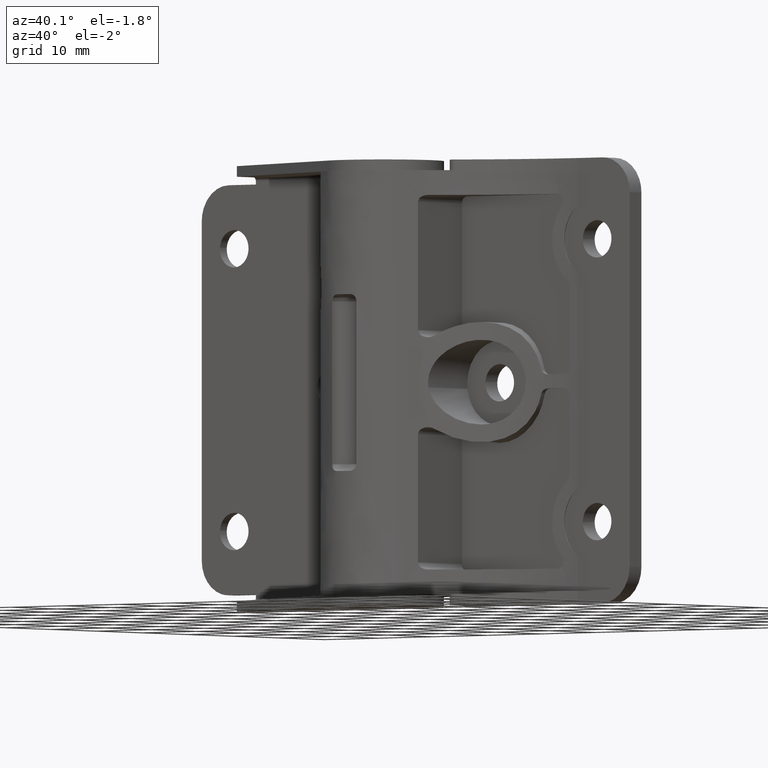
[diagram: clean part render]
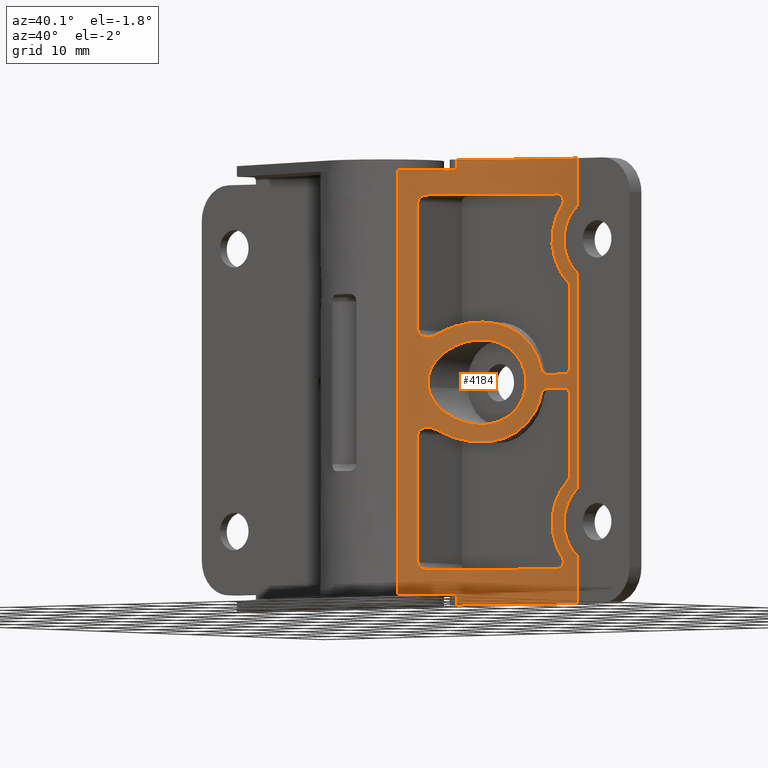
[diagram: same view with one face highlighted and labeled with its STEP entity id]
A machine part, auxiliary view. The second image highlights one B-rep face of the part: STEP entity #4184.
In plain terms, the highlighted face is a freeform B-spline surface patch.
Its self-contained STEP definition (entity closure, byte-faithful):
#79=CARTESIAN_POINT('',(10.046399915409131,-2.176541242901305,30.755231636957920));
#80=VERTEX_POINT('',#79);
#86=CARTESIAN_POINT('',(15.999999999999980,2.356180235164813,25.499999999999989));
#87=VERTEX_POINT('',#86);
#88=CARTESIAN_POINT('',(15.999999999999980,2.356180235164813,25.499999999999989));
#89=CARTESIAN_POINT('',(15.627122994345729,2.139862185327959,25.500000013417502));
#90=CARTESIAN_POINT('',(15.264806071728749,1.918947496279803,25.534416978208011));
#91=CARTESIAN_POINT('',(14.559228312294961,1.468538087505558,25.664516597897460));
#92=CARTESIAN_POINT('',(14.215979809794620,1.239039283744019,25.760243241229539));
#93=CARTESIAN_POINT('',(13.798315675979140,0.947473531585655,25.917836164962310));
#94=CARTESIAN_POINT('',(13.715355285753191,0.888927152133310,25.951267424826430));
#95=CARTESIAN_POINT('',(13.550576688933511,0.771391092973688,26.022011366224049));
#96=CARTESIAN_POINT('',(13.468584962420730,0.712273780034804,26.059412165779829));
#97=CARTESIAN_POINT('',(13.226065336354891,0.535571248485765,26.176698940086730));
#98=CARTESIAN_POINT('',(13.068776752136939,0.418494957364316,26.261701526797101));
#99=CARTESIAN_POINT('',(12.609549855141131,0.069909366428359,26.536913288829378));
#100=CARTESIAN_POINT('',(12.320144768853860,-0.159042637753743,26.747088688802769));
#101=CARTESIAN_POINT('',(11.910898674758300,-0.494165043185735,27.105444947199629));
#102=CARTESIAN_POINT('',(11.778651810878070,-0.604469687366484,27.232133446726980));
#103=CARTESIAN_POINT('',(11.586775825823979,-0.767187897698028,27.434036908871210));
#104=CARTESIAN_POINT('',(11.523921736790790,-0.820954372855805,27.503320799565799));
#105=CARTESIAN_POINT('',(11.401588394986611,-0.926443954639056,27.644700927954489));
#106=CARTESIAN_POINT('',(11.341958582974870,-0.978294135069445,27.716951027518981));
#107=CARTESIAN_POINT('',(11.167704290362240,-1.130972692433649,27.938510097874818));
#108=CARTESIAN_POINT('',(11.057699572364839,-1.228943048802238,28.092609238277721));
#109=CARTESIAN_POINT('',(10.850489860298589,-1.415955574130649,28.414681770416490));
#110=CARTESIAN_POINT('',(10.753278894408529,-1.505004498340103,28.582647143848941));
#111=CARTESIAN_POINT('',(10.617830443566991,-1.630521501749844,28.846325461288611));
#112=CARTESIAN_POINT('',(10.574322007466471,-1.671099313380633,28.936385221719309));
#113=CARTESIAN_POINT('',(10.491395954741339,-1.748864053267523,29.119793516840950));
#114=CARTESIAN_POINT('',(10.452148511354910,-1.785889845574624,29.212738906971271));
#115=CARTESIAN_POINT('',(10.341149044112390,-1.891111421932044,29.495413783365070));
#116=CARTESIAN_POINT('',(10.276114543406530,-1.953471015283392,29.688968262481861));
#117=CARTESIAN_POINT('',(10.192813015001690,-2.033868082190624,29.987640697007819));
#118=CARTESIAN_POINT('',(10.167426875646820,-2.058472117724190,30.088591528423681));
#119=CARTESIAN_POINT('',(10.121633483623089,-2.102982060114273,30.293438981873201));
#120=CARTESIAN_POINT('',(10.101197553214270,-2.122915936165677,30.397504984392761));
#121=CARTESIAN_POINT('',(10.069290242367440,-2.154105895129407,30.586813287968521));
#122=CARTESIAN_POINT('',(10.056942813423341,-2.166200350550792,30.670962796139371));
#123=CARTESIAN_POINT('',(10.046399915409131,-2.176541242901305,30.755231636957920));
#124=B_SPLINE_CURVE_WITH_KNOTS('',3,(#88,#89,#90,#91,#92,#93,#94,#95,#96,#97,#98,#99,#100,#101,#102,#103,#104,#105,#106,#107,#108,#109,#110,#111,#112,#113,#114,#115,#116,#117,#118,#119,#120,#121,#122,#123),.UNSPECIFIED.,.F.,.U.,(4,2,2,2,2,2,2,2,2,2,2,2,2,2,2,2,2,4),(0.0,0.031249999999998,0.062499999999995,0.070312499999995,0.078124999999994,0.093749999999993,0.124999999999992,0.140624999999991,0.148437499999990,0.156249999999990,0.171874999999989,0.187499999999988,0.195312499999988,0.203124999999988,0.218749999999987,0.226562499999987,0.234374999999986,0.240610693302615),.UNSPECIFIED.);
#125=EDGE_CURVE('',#87,#80,#124,.T.);
#127=CARTESIAN_POINT('',(21.999774715368730,5.007763020363887,31.552360724561250));
#128=VERTEX_POINT('',#127);
#129=CARTESIAN_POINT('',(21.999774715368730,5.007763020363887,31.552360724561250));
#130=CARTESIAN_POINT('',(22.000688392311730,5.008052264325341,31.447651608465758));
#131=CARTESIAN_POINT('',(21.998859002446100,5.007472176445858,31.342676887465931));
#132=CARTESIAN_POINT('',(21.989539666015919,5.004520009042709,31.129920617487819));
#133=CARTESIAN_POINT('',(21.981880492656181,5.002092907841563,31.021802980207760));
#134=CARTESIAN_POINT('',(21.960861164526779,4.995415839662321,30.807395041715200));
#135=CARTESIAN_POINT('',(21.947512789436630,4.991169592834595,30.700942959198951));
#136=CARTESIAN_POINT('',(21.899135487623489,4.975727317390027,30.383796713047541));
#137=CARTESIAN_POINT('',(21.812459261875009,4.947952202266396,29.966815482028689));
#138=CARTESIAN_POINT('',(21.682221608858729,4.905399965706035,29.561438596140469));
#139=CARTESIAN_POINT('',(21.567953026621989,4.867483397094599,29.261854715158549));
#140=CARTESIAN_POINT('',(21.526954713195892,4.853794056837918,29.162448411533880));
#141=CARTESIAN_POINT('',(21.440275507613169,4.824617553894422,28.967258512052240));
#142=CARTESIAN_POINT('',(21.394560684941190,4.809119708637724,28.871333618759980));
#143=CARTESIAN_POINT('',(21.250492234720031,4.759850615796395,28.588454505508881));
#144=CARTESIAN_POINT('',(21.145232149999419,4.723313197380211,28.406382943298190));
#145=CARTESIAN_POINT('',(20.916892978548741,4.642373894215008,28.054996911814531));
#146=CARTESIAN_POINT('',(20.793812206580000,4.597972703165214,27.885683333750229));
#147=CARTESIAN_POINT('',(20.595872229680872,4.524879046881969,27.641382840966148));
#148=CARTESIAN_POINT('',(20.527459574583052,4.499350385773447,27.561343661855389));
#149=CARTESIAN_POINT('',(20.387559200438101,4.446530082910657,27.406074085496829));
#150=CARTESIAN_POINT('',(20.316020210918978,4.419221314943354,27.330751436306269));
#151=CARTESIAN_POINT('',(19.950696248730740,4.278086022081856,26.965372791512380));
#152=CARTESIAN_POINT('',(19.634238014311101,4.150595057232022,26.708714749147610));
#153=CARTESIAN_POINT('',(19.211088910084889,3.970319292713258,26.430566349342751));
#154=CARTESIAN_POINT('',(19.124841540412291,3.933112237255456,26.376959526806040));
#155=CARTESIAN_POINT('',(18.950780125099961,3.857022810519817,26.274765476745401));
#156=CARTESIAN_POINT('',(18.863079460490610,3.818192866965370,26.226225737150969));
#157=CARTESIAN_POINT('',(18.598091093329369,3.699315773483112,26.088011757114710));
#158=CARTESIAN_POINT('',(18.418922565694778,3.616883668796741,26.005726449285241));
#159=CARTESIAN_POINT('',(18.056070969603461,3.445432129689272,25.859893479227178));
#160=CARTESIAN_POINT('',(17.872386692662570,3.356412788470666,25.796348676560442));
#161=CARTESIAN_POINT('',(17.593727438006368,3.217717337065166,25.714725641209611));
#162=CARTESIAN_POINT('',(17.500317710318271,3.170623851059388,25.689803888269399));
#163=CARTESIAN_POINT('',(17.312480836279668,3.074668247193306,25.644513129327748));
#164=CARTESIAN_POINT('',(17.218307752853949,3.025933920359813,25.624212475982691));
#165=CARTESIAN_POINT('',(16.936367197359129,2.878121406396459,25.570427436260719));
#166=CARTESIAN_POINT('',(16.748650246931330,2.777164621636087,25.543914555835990));
#167=CARTESIAN_POINT('',(16.467540144092560,2.622061849699220,25.517503536774051));
#168=CARTESIAN_POINT('',(16.373913979257939,2.569749479533512,25.510930153361588));
#169=CARTESIAN_POINT('',(16.186828909284149,2.463892131271909,25.502178369929769));
#170=CARTESIAN_POINT('',(16.093219250086850,2.410259702255415,25.499999999629161));
#171=CARTESIAN_POINT('',(15.999999999999980,2.356180235164813,25.499999999999989));
#172=B_SPLINE_CURVE_WITH_KNOTS('',3,(#129,#130,#131,#132,#133,#134,#135,#136,#137,#138,#139,#140,#141,#142,#143,#144,#145,#146,#147,#148,#149,#150,#151,#152,#153,#154,#155,#156,#157,#158,#159,#160,#161,#162,#163,#164,#165,#166,#167,#168,#169,#170,#171),.UNSPECIFIED.,.F.,.U.,(4,2,2,2,1,2,2,2,2,2,2,2,2,2,2,2,2,2,2,2,2,4),(0.757977336081141,0.765624999999984,0.773437499999985,0.781249999999985,0.796874999999986,0.812499999999987,0.820312499999988,0.828124999999988,0.843749999999989,0.859374999999990,0.867187499999990,0.874999999999991,0.906249999999993,0.914062499999993,0.921874999999994,0.937499999999995,0.953124999999996,0.960937499999997,0.968749999999997,0.984374999999999,0.992187499999999,1.0),.UNSPECIFIED.);
#173=EDGE_CURVE('',#128,#87,#172,.T.);
#253=CARTESIAN_POINT('',(15.389306146218869,1.992157707301278,37.468840173513939));
#254=VERTEX_POINT('',#253);
#255=CARTESIAN_POINT('',(15.389306146218869,1.992157707301278,37.468840173513939));
#256=CARTESIAN_POINT('',(15.751132909243600,2.213687872872112,37.505860001286550));
#257=CARTESIAN_POINT('',(16.117110050367231,2.427210892108075,37.510336947711927));
#258=CARTESIAN_POINT('',(16.672223617793499,2.735541683337900,37.465113669467868));
#259=CARTESIAN_POINT('',(16.858285935759710,2.836325398790654,37.441333049191933));
#260=CARTESIAN_POINT('',(17.138903543647491,2.984510019905937,37.391682347981892));
#261=CARTESIAN_POINT('',(17.232718101811379,3.033417334941423,37.372793168765483));
#262=CARTESIAN_POINT('',(17.420766404192420,3.130189579740529,37.330155738514762));
#263=CARTESIAN_POINT('',(17.514209646459971,3.177648060930513,37.306587189232573));
#264=CARTESIAN_POINT('',(17.978469085653082,3.410440852740389,37.177522454958698));
#265=CARTESIAN_POINT('',(18.340513209538500,3.582329847545071,37.038633966920493));
#266=CARTESIAN_POINT('',(18.867400827990942,3.820620887876411,36.774146735186882));
#267=CARTESIAN_POINT('',(19.040315064554399,3.896783738565965,36.676573263480563));
#268=CARTESIAN_POINT('',(19.295136373996819,4.006280988518238,36.515194479985389));
#269=CARTESIAN_POINT('',(19.379316765027600,4.041988260171960,36.458894005816937));
#270=CARTESIAN_POINT('',(19.546053689532240,4.111836596513656,36.341065358013012));
#271=CARTESIAN_POINT('',(19.628231672693950,4.145817030240302,36.279786614981468));
#272=CARTESIAN_POINT('',(20.029768056546899,4.309855303350079,35.964071726314693));
#273=CARTESIAN_POINT('',(20.324596985356148,4.423843086987628,35.679649285153779));
#274=CARTESIAN_POINT('',(20.724645008651780,4.572710892886765,35.204134958610297));
#275=CARTESIAN_POINT('',(20.850917246784071,4.618621201331347,35.037430577579677));
#276=CARTESIAN_POINT('',(21.028887849064020,4.682142600286296,34.774366030235853));
#277=CARTESIAN_POINT('',(21.086032973620931,4.702327563468359,34.684872549525622));
#278=CARTESIAN_POINT('',(21.195033573891159,4.740490921530553,34.503792523398218));
#279=CARTESIAN_POINT('',(21.247039882643332,4.758523203966065,34.411985649522713));
#280=CARTESIAN_POINT('',(21.395622717279320,4.809628575976793,34.132808497257393));
#281=CARTESIAN_POINT('',(21.484782697195410,4.839721107869576,33.941692023371203));
#282=CARTESIAN_POINT('',(21.643089742592711,4.892510598918189,33.549447998964659));
#283=CARTESIAN_POINT('',(21.712239985889699,4.915207815415037,33.348321899644503));
#284=CARTESIAN_POINT('',(21.800293143628270,4.943861096560092,33.038853262660631));
#285=CARTESIAN_POINT('',(21.827071972268460,4.952525087072554,32.934133047118749));
#286=CARTESIAN_POINT('',(21.874671881634050,4.967867219956277,32.724636562319347));
#287=CARTESIAN_POINT('',(21.895579803531870,4.974573815588430,32.619606940773451));
#288=CARTESIAN_POINT('',(21.949765559410199,4.991907285856592,32.303689093671807));
#289=CARTESIAN_POINT('',(21.974529141948739,4.999760916418602,32.091974342277027));
#290=CARTESIAN_POINT('',(21.994884030476229,5.006213859258510,31.770517470298490));
#291=CARTESIAN_POINT('',(21.998821701988099,5.007461388337048,31.661583596245080));
#292=CARTESIAN_POINT('',(21.999774715368730,5.007763020363887,31.552360724561250));
#293=B_SPLINE_CURVE_WITH_KNOTS('',3,(#255,#256,#257,#258,#259,#260,#261,#262,#263,#264,#265,#266,#267,#268,#269,#270,#271,#272,#273,#274,#275,#276,#277,#278,#279,#280,#281,#282,#283,#284,#285,#286,#287,#288,#289,#290,#291,#292),.UNSPECIFIED.,.F.,.U.,(4,2,2,2,2,2,2,2,2,2,2,2,2,2,2,2,2,2,4),(0.499999999999978,0.531249999999977,0.546874999999977,0.554687499999977,0.562499999999978,0.593749999999978,0.609374999999978,0.617187499999978,0.624999999999978,0.656249999999979,0.671874999999980,0.679687499999980,0.687499999999980,0.703124999999981,0.718749999999982,0.726562499999982,0.734374999999983,0.749999999999984,0.757977336081141),.UNSPECIFIED.);
#294=EDGE_CURVE('',#254,#128,#293,.T.);
#296=CARTESIAN_POINT('',(10.046399915409131,-2.176541242901305,30.755231636957920));
#297=CARTESIAN_POINT('',(10.030525046848309,-2.192111894806682,30.882118241937452));
#298=CARTESIAN_POINT('',(9.999132136621125,-2.223002190444761,31.220881083669742));
#299=CARTESIAN_POINT('',(9.996510678886621,-2.225590453179283,31.561557957108210));
#300=CARTESIAN_POINT('',(10.011214951392260,-2.211112774297812,31.881902204220228));
#301=CARTESIAN_POINT('',(10.018982461535741,-2.203467105280074,31.988874302361101));
#302=CARTESIAN_POINT('',(10.040380112120280,-2.182445235343821,32.203207302667003));
#303=CARTESIAN_POINT('',(10.053910794764059,-2.169167136919078,32.309488538492211));
#304=CARTESIAN_POINT('',(10.102465625618180,-2.121644749394357,32.624353449906472));
#305=CARTESIAN_POINT('',(10.145489296542630,-2.079668117924443,32.829617606148823));
#306=CARTESIAN_POINT('',(10.225026271563699,-2.002747067665986,33.131089995617643));
#307=CARTESIAN_POINT('',(10.254045938012220,-1.974775848848209,33.230507494224128));
#308=CARTESIAN_POINT('',(10.317014613244179,-1.914367060304477,33.427257739463101));
#309=CARTESIAN_POINT('',(10.351087270613940,-1.881812556603753,33.524892305195763));
#310=CARTESIAN_POINT('',(10.459347719783390,-1.778922841208401,33.811462454913617));
#311=CARTESIAN_POINT('',(10.539666398626220,-1.703272050691221,33.994704520056473));
#312=CARTESIAN_POINT('',(10.715081334172220,-1.540190238373940,34.347530589796037));
#313=CARTESIAN_POINT('',(10.810186227506680,-1.452750310734638,34.517105621701837));
#314=CARTESIAN_POINT('',(10.963357981302790,-1.313985631723860,34.762131052618500));
#315=CARTESIAN_POINT('',(11.016172559641200,-1.266458839624003,34.842245209172162));
#316=CARTESIAN_POINT('',(11.125272852602560,-1.169022244442115,34.999453560674439));
#317=CARTESIAN_POINT('',(11.181706645207150,-1.118982686400091,35.076735417921533));
#318=CARTESIAN_POINT('',(11.354945897688451,-0.966589061590127,35.302560166017336));
#319=CARTESIAN_POINT('',(11.475529850159241,-0.862092482973062,35.445016979135488));
#320=CARTESIAN_POINT('',(11.851709830974650,-0.541665572315851,35.850595614169137));
#321=CARTESIAN_POINT('',(12.121605928779539,-0.318901308399715,36.092156166957317));
#322=CARTESIAN_POINT('',(12.482528641446370,-0.032603940352381,36.361636042016187));
#323=CARTESIAN_POINT('',(12.555901562415430,0.025056491216819,36.413888955908021));
#324=CARTESIAN_POINT('',(12.705057352116450,0.141121343452163,36.515124354496571));
#325=CARTESIAN_POINT('',(12.780978236367030,0.199630742206601,36.564190246061123));
#326=CARTESIAN_POINT('',(13.011393411643780,0.375414801110965,36.705837154311901));
#327=CARTESIAN_POINT('',(13.168050443827291,0.492580805227363,36.792624681428677));
#328=CARTESIAN_POINT('',(13.647169263277210,0.843491755125249,37.030954268520183));
#329=CARTESIAN_POINT('',(13.978720762325480,1.076619218950498,37.160663545013300));
#330=CARTESIAN_POINT('',(14.495364873681320,1.423747842002408,37.311044948776342));
#331=CARTESIAN_POINT('',(14.670850267080519,1.539062463586248,37.353764811564233));
#332=CARTESIAN_POINT('',(15.028516750084020,1.768624681458136,37.423632497948553));
#333=CARTESIAN_POINT('',(15.208392760901029,1.881392541306391,37.450330264927992));
#334=CARTESIAN_POINT('',(15.389306146218869,1.992157707301278,37.468840173513939));
#335=B_SPLINE_CURVE_WITH_KNOTS('',3,(#296,#297,#298,#299,#300,#301,#302,#303,#304,#305,#306,#307,#308,#309,#310,#311,#312,#313,#314,#315,#316,#317,#318,#319,#320,#321,#322,#323,#324,#325,#326,#327,#328,#329,#330,#331,#332,#333,#334),.UNSPECIFIED.,.F.,.U.,(4,1,2,2,2,2,2,2,2,2,2,2,2,2,2,2,2,2,2,4),(0.240610693302615,0.249999999999986,0.265624999999985,0.273437499999985,0.281249999999984,0.296874999999984,0.304687499999984,0.312499999999984,0.328124999999983,0.343749999999982,0.351562499999982,0.359374999999981,0.374999999999980,0.406249999999979,0.414062499999979,0.421874999999978,0.437499999999978,0.468749999999978,0.484374999999978,0.499999999999978),.UNSPECIFIED.);
#336=EDGE_CURVE('',#80,#254,#335,.T.);
#928=CARTESIAN_POINT('',(30.418579000000200,6.400002000000000,16.313878230777998));
#929=VERTEX_POINT('',#928);
#930=CARTESIAN_POINT('',(30.418579000000200,6.400002000000000,6.686121769221850));
#931=VERTEX_POINT('',#930);
#932=CARTESIAN_POINT('',(30.418579000000200,6.400002000000000,16.313878230777998));
#933=CARTESIAN_POINT('',(30.230081745657969,6.396007901392590,16.173640361687902));
#934=CARTESIAN_POINT('',(30.051708052073909,6.390457963840874,16.023797379178600));
#935=CARTESIAN_POINT('',(29.714395808500040,6.377280833389623,15.705632978247049));
#936=CARTESIAN_POINT('',(29.555459892548690,6.369651120514992,15.537309150446159));
#937=CARTESIAN_POINT('',(29.331641979473140,6.357338488304572,15.270926130002740));
#938=CARTESIAN_POINT('',(29.259473105925672,6.353088981111050,15.179809771797670));
#939=CARTESIAN_POINT('',(29.154932937957380,6.346579815712154,15.039593756608900));
#940=CARTESIAN_POINT('',(29.120705477709379,6.344387594499488,14.992264451981240));
#941=CARTESIAN_POINT('',(29.053503742521158,6.339971884216519,14.896409988881640));
#942=CARTESIAN_POINT('',(29.020479222453140,6.337744840861476,14.847805983462980));
#943=CARTESIAN_POINT('',(28.859428506416240,6.326628274520123,14.603133569515670));
#944=CARTESIAN_POINT('',(28.743202057830800,6.317779142190163,14.401679699572250));
#945=CARTESIAN_POINT('',(28.535111557041230,6.300973635085676,13.987702552500940));
#946=CARTESIAN_POINT('',(28.443249938141591,6.293015431436296,13.775178240735761));
#947=CARTESIAN_POINT('',(28.323847569797991,6.282263852965600,13.448017045198020));
#948=CARTESIAN_POINT('',(28.287119452678560,6.278876908509407,13.337564080398250));
#949=CARTESIAN_POINT('',(28.219923804448658,6.272576480703097,13.113804533131020));
#950=CARTESIAN_POINT('',(28.189379856008941,6.269655468606587,13.000128544476491));
#951=CARTESIAN_POINT('',(28.108273192815581,6.261800840926941,12.658586923944631));
#952=CARTESIAN_POINT('',(28.067935293760019,6.257756045091766,12.429669925600590));
#953=CARTESIAN_POINT('',(28.013909077171270,6.252302091943884,11.969460662049331));
#954=CARTESIAN_POINT('',(28.000222586259358,6.250892405247884,11.738168240220510));
#955=CARTESIAN_POINT('',(27.999892732665948,6.250858649582266,11.389428476741580));
#956=CARTESIAN_POINT('',(28.003157749007631,6.251193369686265,11.272880973206551));
#957=CARTESIAN_POINT('',(28.016578128624399,6.252562265765213,11.039171675389960));
#958=CARTESIAN_POINT('',(28.026774410596140,6.253600554588870,10.921874131938329));
#959=CARTESIAN_POINT('',(28.067331729008821,6.257695683756344,10.573684162232370));
#960=CARTESIAN_POINT('',(28.107670992918990,6.261739996853585,10.344964741834470));
#961=CARTESIAN_POINT('',(28.214250003118700,6.272066433278019,9.894153011995927));
#962=CARTESIAN_POINT('',(28.280490800472101,6.278349423706305,9.672060989880444));
#963=CARTESIAN_POINT('',(28.399553153268471,6.289085581112686,9.343954605305097));
#964=CARTESIAN_POINT('',(28.442532290443630,6.292882060584224,9.235426469581361));
#965=CARTESIAN_POINT('',(28.512051091795399,6.298848309408539,9.073922520756090));
#966=CARTESIAN_POINT('',(28.536071373136579,6.300882532878065,9.020300642797148));
#967=CARTESIAN_POINT('',(28.585479467827831,6.305003154694485,8.914194062143148));
#968=CARTESIAN_POINT('',(28.610904920031711,6.307092815476678,8.861619429036471));
#969=CARTESIAN_POINT('',(28.741596912671930,6.317656872582930,8.601110201818919));
#970=CARTESIAN_POINT('',(28.857520700369729,6.326480617079976,8.400243065475708));
#971=CARTESIAN_POINT('',(29.111636576489492,6.344052513657351,8.013240839985913));
#972=CARTESIAN_POINT('',(29.249828761059909,6.352802617281678,7.827105900209028));
#973=CARTESIAN_POINT('',(29.474157562618341,6.365194934921363,7.559147338598099));
#974=CARTESIAN_POINT('',(29.551835238866289,6.369205296414248,7.471649125259988));
#975=CARTESIAN_POINT('',(29.712809005509389,6.376842903212875,7.300741269108440));
#976=CARTESIAN_POINT('',(29.795600833244080,6.380446267846743,7.217860465177593));
#977=CARTESIAN_POINT('',(30.050827413970609,6.390436971812365,6.976859356356294));
#978=CARTESIAN_POINT('',(30.230089504618530,6.396008065798451,6.826353865813563));
#979=CARTESIAN_POINT('',(30.418579000000150,6.400002000000000,6.686121769221870));
#980=B_SPLINE_CURVE_WITH_KNOTS('',3,(#932,#933,#934,#935,#936,#937,#938,#939,#940,#941,#942,#943,#944,#945,#946,#947,#948,#949,#950,#951,#952,#953,#954,#955,#956,#957,#958,#959,#960,#961,#962,#963,#964,#965,#966,#967,#968,#969,#970,#971,#972,#973,#974,#975,#976,#977,#978,#979),.UNSPECIFIED.,.F.,.U.,(4,2,2,2,2,2,2,2,2,2,2,2,2,2,2,2,2,2,2,2,2,2,2,4),(0.0,0.062500000000000,0.125000000000000,0.156250000000000,0.171875000000000,0.187500000000000,0.250000000000000,0.312500000000000,0.343750000000000,0.375000000000000,0.437500000000000,0.500000000000000,0.531250000000000,0.562500000000001,0.625000000000000,0.687500000000000,0.718750000000000,0.734375000000000,0.750000000000000,0.812500000000000,0.875000000000000,0.906250000000000,0.937500000000000,1.0),.UNSPECIFIED.);
#981=EDGE_CURVE('',#929,#931,#980,.T.);
#1015=CARTESIAN_POINT('',(30.418579000000200,6.400002000000000,56.313878230778002));
#1016=VERTEX_POINT('',#1015);
#1017=CARTESIAN_POINT('',(30.418579000000200,6.400002000000000,46.686121769221899));
#1018=VERTEX_POINT('',#1017);
#1019=CARTESIAN_POINT('',(30.418579000000200,6.400002000000000,56.313878230777902));
#1020=CARTESIAN_POINT('',(30.230081745657969,6.396007901392587,56.173640361687767));
#1021=CARTESIAN_POINT('',(30.051708052073820,6.390457963840874,56.023797379178532));
#1022=CARTESIAN_POINT('',(29.714395808499969,6.377280833389620,55.705632978246982));
#1023=CARTESIAN_POINT('',(29.555459892548608,6.369651120514988,55.537309150446070));
#1024=CARTESIAN_POINT('',(29.331641979473069,6.357338488304571,55.270926130002643));
#1025=CARTESIAN_POINT('',(29.259473105925601,6.353088981111043,55.179809771797579));
#1026=CARTESIAN_POINT('',(29.154932937957319,6.346579815712148,55.039593756608809));
#1027=CARTESIAN_POINT('',(29.120705477709318,6.344387594499486,54.992264451981157));
#1028=CARTESIAN_POINT('',(29.053503742521109,6.339971884216512,54.896409988881537));
#1029=CARTESIAN_POINT('',(29.020479222453101,6.337744840861473,54.847805983462898));
#1030=CARTESIAN_POINT('',(28.859428506416201,6.326628274520117,54.603133569515599));
#1031=CARTESIAN_POINT('',(28.743202057830771,6.317779142190160,54.401679699572213));
#1032=CARTESIAN_POINT('',(28.535111557041191,6.300973635085673,53.987702552500863));
#1033=CARTESIAN_POINT('',(28.443249938141580,6.293015431436298,53.775178240735713));
#1034=CARTESIAN_POINT('',(28.323847569797980,6.282263852965599,53.448017045197957));
#1035=CARTESIAN_POINT('',(28.287119452678539,6.278876908509412,53.337564080398188));
#1036=CARTESIAN_POINT('',(28.219923804448630,6.272576480703100,53.113804533130960));
#1037=CARTESIAN_POINT('',(28.189379856008941,6.269655468606589,53.000128544476453));
#1038=CARTESIAN_POINT('',(28.108273192815570,6.261800840926940,52.658586923944583));
#1039=CARTESIAN_POINT('',(28.067935293760009,6.257756045091765,52.429669925600521));
#1040=CARTESIAN_POINT('',(28.013909077171260,6.252302091943882,51.969460662049258));
#1041=CARTESIAN_POINT('',(28.000222586259351,6.250892405247884,51.738168240220453));
#1042=CARTESIAN_POINT('',(27.999892732665959,6.250858649582269,51.389428476741543));
#1043=CARTESIAN_POINT('',(28.003157749007642,6.251193369686270,51.272880973206512));
#1044=CARTESIAN_POINT('',(28.016578128624410,6.252562265765217,51.039171675389923));
#1045=CARTESIAN_POINT('',(28.026774410596140,6.253600554588870,50.921874131938289));
#1046=CARTESIAN_POINT('',(28.067331729008821,6.257695683756342,50.573684162232318));
#1047=CARTESIAN_POINT('',(28.107670992919001,6.261739996853589,50.344964741834438));
#1048=CARTESIAN_POINT('',(28.214250003118689,6.272066433278020,49.894153011995897));
#1049=CARTESIAN_POINT('',(28.280490800472109,6.278349423706303,49.672060989880407));
#1050=CARTESIAN_POINT('',(28.399553153268471,6.289085581112686,49.343954605305093));
#1051=CARTESIAN_POINT('',(28.442532290443630,6.292882060584223,49.235426469581327));
#1052=CARTESIAN_POINT('',(28.512051091795399,6.298848309408537,49.073922520756078));
#1053=CARTESIAN_POINT('',(28.536071373136590,6.300882532878066,49.020300642797132));
#1054=CARTESIAN_POINT('',(28.585479467827831,6.305003154694484,48.914194062143132));
#1055=CARTESIAN_POINT('',(28.610904920031711,6.307092815476683,48.861619429036473));
#1056=CARTESIAN_POINT('',(28.741596912671941,6.317656872582933,48.601110201818933));
#1057=CARTESIAN_POINT('',(28.857520700369719,6.326480617079975,48.400243065475713));
#1058=CARTESIAN_POINT('',(29.111636576489499,6.344052513657352,48.013240839985933));
#1059=CARTESIAN_POINT('',(29.249828761059920,6.352802617281678,47.827105900209027));
#1060=CARTESIAN_POINT('',(29.474157562618341,6.365194934921362,47.559147338598109));
#1061=CARTESIAN_POINT('',(29.551835238866278,6.369205296414247,47.471649125260022));
#1062=CARTESIAN_POINT('',(29.712809005509371,6.376842903212873,47.300741269108443));
#1063=CARTESIAN_POINT('',(29.795600833244059,6.380446267846747,47.217860465177601));
#1064=CARTESIAN_POINT('',(30.050827413970580,6.390436971812364,46.976859356356307));
#1065=CARTESIAN_POINT('',(30.230089504618569,6.396008065798450,46.826353865813488));
#1066=CARTESIAN_POINT('',(30.418579000000200,6.400002000000000,46.686121769221799));
#1067=B_SPLINE_CURVE_WITH_KNOTS('',3,(#1019,#1020,#1021,#1022,#1023,#1024,#1025,#1026,#1027,#1028,#1029,#1030,#1031,#1032,#1033,#1034,#1035,#1036,#1037,#1038,#1039,#1040,#1041,#1042,#1043,#1044,#1045,#1046,#1047,#1048,#1049,#1050,#1051,#1052,#1053,#1054,#1055,#1056,#1057,#1058,#1059,#1060,#1061,#1062,#1063,#1064,#1065,#1066),.UNSPECIFIED.,.F.,.U.,(4,2,2,2,2,2,2,2,2,2,2,2,2,2,2,2,2,2,2,2,2,2,2,4),(0.0,0.062500000000002,0.125000000000003,0.156250000000004,0.171875000000005,0.187500000000007,0.250000000000012,0.312500000000017,0.343750000000019,0.375000000000020,0.437500000000021,0.500000000000023,0.531250000000023,0.562500000000024,0.625000000000024,0.687500000000023,0.718750000000024,0.734375000000024,0.750000000000023,0.812500000000018,0.875000000000012,0.906250000000009,0.937500000000006,1.0),.UNSPECIFIED.);
#1068=EDGE_CURVE('',#1016,#1018,#1067,.T.);
#1255=CARTESIAN_POINT('',(26.876098947640351,6.114380155674080,58.0));
#1256=VERTEX_POINT('',#1255);
#1257=CARTESIAN_POINT('',(10.000000000000201,-2.222154145648065,58.0));
#1258=VERTEX_POINT('',#1257);
#1259=CARTESIAN_POINT('',(26.876098947640351,6.114380155674101,58.0));
#1260=CARTESIAN_POINT('',(17.060880317210128,4.733991290466151,58.0));
#1261=CARTESIAN_POINT('',(10.000000000000210,-2.222154145648050,58.0));
#1269=(BOUNDED_CURVE()B_SPLINE_CURVE(2,(#1259,#1260,#1261),.UNSPECIFIED.,.F.,.U.)CURVE()GEOMETRIC_REPRESENTATION_ITEM()QUASI_UNIFORM_CURVE()RATIONAL_B_SPLINE_CURVE((1.0,0.949517345250315,1.0))REPRESENTATION_ITEM(''));
#1270=EDGE_CURVE('',#1256,#1258,#1269,.T.);
#1300=CARTESIAN_POINT('',(27.667640976952299,6.214985306537249,56.388888340228597));
#1301=VERTEX_POINT('',#1300);
#1302=CARTESIAN_POINT('',(27.667640976952299,6.214985306537249,56.388888340228597));
#1303=CARTESIAN_POINT('',(27.724911609077271,6.221491733266487,56.463068016340493));
#1304=CARTESIAN_POINT('',(27.770693194503071,6.226532670840116,56.543531438637480));
#1305=CARTESIAN_POINT('',(27.822356602132029,6.232160877086110,56.673258870419062));
#1306=CARTESIAN_POINT('',(27.836710294523940,6.233709707088797,56.718248702848612));
#1307=CARTESIAN_POINT('',(27.858706439387898,6.236074200444594,56.808582307833468));
#1308=CARTESIAN_POINT('',(27.866503383898120,6.236906711675065,56.854237651037252));
#1309=CARTESIAN_POINT('',(27.875742666327699,6.237892560503841,56.946517902407813));
#1310=CARTESIAN_POINT('',(27.877171739280779,6.238044485263659,56.993411807675407));
#1311=CARTESIAN_POINT('',(27.873407699099442,6.237643387382086,57.086981007822857));
#1312=CARTESIAN_POINT('',(27.863144073686360,6.236550344632814,57.179311345017709));
#1313=CARTESIAN_POINT('',(27.840302251298908,6.234098537640204,57.269243797340991));
#1314=CARTESIAN_POINT('',(27.818331724344159,6.231720365000111,57.335770271926869));
#1315=CARTESIAN_POINT('',(27.810167427916209,6.230833893610670,57.357854872849387));
#1316=CARTESIAN_POINT('',(27.792449324829239,6.228901384519102,57.401056295117662));
#1317=CARTESIAN_POINT('',(27.782877764822292,6.227853443067130,57.422242339569458));
#1318=CARTESIAN_POINT('',(27.752071491940200,6.224463407538315,57.484582793797848));
#1319=CARTESIAN_POINT('',(27.728755006774762,6.221876498321623,57.524525257138542));
#1320=CARTESIAN_POINT('',(27.676562840513188,6.216009119611657,57.601171234661642));
#1321=CARTESIAN_POINT('',(27.647422937965519,6.212698055251028,57.638139932674200));
#1322=CARTESIAN_POINT('',(27.553572526178570,6.201871561251972,57.741406552584223));
#1323=CARTESIAN_POINT('',(27.482676486313739,6.193497205455459,57.800482314334531));
#1324=CARTESIAN_POINT('',(27.363740136451408,6.178915368632445,57.874290136820221));
#1325=CARTESIAN_POINT('',(27.322664313753599,6.173798563681863,57.895935151786247));
#1326=CARTESIAN_POINT('',(27.238439734939760,6.163119530950615,57.933182503759063));
#1327=CARTESIAN_POINT('',(27.195182735345469,6.157544140256780,57.948851369735287));
#1328=CARTESIAN_POINT('',(27.106361529620731,6.145888416514088,57.974224053064987));
#1329=CARTESIAN_POINT('',(27.060579314633340,6.139777465110632,57.983927581415152));
#1330=CARTESIAN_POINT('',(26.968815234222500,6.127308143957325,57.996769851336417));
#1331=CARTESIAN_POINT('',(26.922614961501441,6.120922056963775,58.000000013706718));
#1332=CARTESIAN_POINT('',(26.876098947640351,6.114380155674080,58.0));
#1333=B_SPLINE_CURVE_WITH_KNOTS('',3,(#1302,#1303,#1304,#1305,#1306,#1307,#1308,#1309,#1310,#1311,#1312,#1313,#1314,#1315,#1316,#1317,#1318,#1319,#1320,#1321,#1322,#1323,#1324,#1325,#1326,#1327,#1328,#1329,#1330,#1331,#1332),.UNSPECIFIED.,.F.,.U.,(4,2,2,2,2,1,2,2,2,2,2,2,2,2,2,4),(0.000000145466831,0.125000000000001,0.187500000000002,0.250000000000003,0.312500000000004,0.375000000000004,0.437500000000005,0.468750000000005,0.500000000000004,0.562500000000001,0.624999999999999,0.750000000000000,0.812500000000000,0.875000000000000,0.937500000000000,1.0),.UNSPECIFIED.);
#1334=EDGE_CURVE('',#1301,#1256,#1333,.T.);
#1362=CARTESIAN_POINT('',(28.666666655013749,6.311585363709860,45.537149002922803));
#1363=VERTEX_POINT('',#1362);
#1369=CARTESIAN_POINT('',(27.667640976952299,6.214985306537249,56.388888340228597));
#1370=CARTESIAN_POINT('',(27.591435208542510,6.206327685113149,56.290182406699138));
#1371=CARTESIAN_POINT('',(27.517373254393409,6.197617749894170,56.189485067215763));
#1372=CARTESIAN_POINT('',(27.373603201679192,6.180197534399070,55.984036712567672));
#1373=CARTESIAN_POINT('',(27.303744740738178,6.171467210359782,55.879030494118872));
#1374=CARTESIAN_POINT('',(27.102698322699631,6.145675188757436,55.560812691840283));
#1375=CARTESIAN_POINT('',(26.979547228524901,6.128962733688760,55.343834944499903));
#1376=CARTESIAN_POINT('',(26.641813935753500,6.081358889194368,54.678740951760638));
#1377=CARTESIAN_POINT('',(26.458670346254259,6.053016787685696,54.216587145500753));
#1378=CARTESIAN_POINT('',(26.283534109231070,6.025020252466730,53.614681050560861));
#1379=CARTESIAN_POINT('',(26.251148794449549,6.019779595972786,53.492775365603357));
#1380=CARTESIAN_POINT('',(26.192288874903319,6.010173009761816,53.247997782462612));
#1381=CARTESIAN_POINT('',(26.165854839970279,6.005814143673922,53.125368287750668));
#1382=CARTESIAN_POINT('',(26.095373118992971,5.994116682872859,52.756770222132900));
#1383=CARTESIAN_POINT('',(26.024879781411489,5.982202236985614,52.263416896255627));
#1384=CARTESIAN_POINT('',(26.000543267026931,5.978028880096065,51.766343523017433));
#1385=CARTESIAN_POINT('',(25.999491117495040,5.977849060122503,51.267392374913001));
#1386=CARTESIAN_POINT('',(26.010617250493670,5.979758037131850,51.016845747333541));
#1387=CARTESIAN_POINT('',(26.080105405053899,5.991552819705253,50.263093492424410));
#1388=CARTESIAN_POINT('',(26.172793519451449,6.007275242810588,49.773090993417789));
#1389=CARTESIAN_POINT('',(26.378417200151020,6.040207213102704,49.055959240475751));
#1390=CARTESIAN_POINT('',(26.458133622762499,6.052737292441249,48.819913883261982));
#1391=CARTESIAN_POINT('',(26.594781966005328,6.073492096912174,48.470409983056001));
#1392=CARTESIAN_POINT('',(26.643181733340551,6.080736441373766,48.354670584289629));
#1393=CARTESIAN_POINT('',(26.745793815812821,6.095808099461854,48.124742099381827));
#1394=CARTESIAN_POINT('',(26.799713732786032,6.103591876542425,48.011223564945013));
#1395=CARTESIAN_POINT('',(27.081306660680649,6.143388423931689,47.452501041075998));
#1396=CARTESIAN_POINT('',(27.345465953857129,6.178174328545265,47.031805479189693));
#1397=CARTESIAN_POINT('',(27.799161742291979,6.230021922945933,46.439216822801342));
#1398=CARTESIAN_POINT('',(27.960033641244060,6.247246371137134,46.248138900530243));
#1399=CARTESIAN_POINT('',(28.216293952873318,6.272336079018176,45.971475755382322));
#1400=CARTESIAN_POINT('',(28.304025563675200,6.280553618673440,45.881139717422393));
#1401=CARTESIAN_POINT('',(28.482674320253970,6.296461023219450,45.705620500276133));
#1402=CARTESIAN_POINT('',(28.573787969284211,6.304170426901198,45.620222212385698));
#1403=CARTESIAN_POINT('',(28.666666655013749,6.311585363709860,45.537149002922803));
#1404=B_SPLINE_CURVE_WITH_KNOTS('',3,(#1369,#1370,#1371,#1372,#1373,#1374,#1375,#1376,#1377,#1378,#1379,#1380,#1381,#1382,#1383,#1384,#1385,#1386,#1387,#1388,#1389,#1390,#1391,#1392,#1393,#1394,#1395,#1396,#1397,#1398,#1399,#1400,#1401,#1402,#1403),.UNSPECIFIED.,.F.,.U.,(4,2,2,2,2,2,2,1,2,2,2,2,2,2,2,2,2,4),(0.0,0.031250000000000,0.062500000000000,0.125000000000000,0.249999999999999,0.281249999999999,0.312499999999998,0.374999999999999,0.437499999999999,0.499999999999999,0.624999999999999,0.687500000000000,0.718750000000001,0.750000000000001,0.875000000000001,0.937500000000000,0.968750000000000,1.0),.UNSPECIFIED.);
#1405=EDGE_CURVE('',#1301,#1363,#1404,.T.);
#1424=CARTESIAN_POINT('',(29.0,6.336328947436770,44.791793000000013));
#1425=VERTEX_POINT('',#1424);
#1426=CARTESIAN_POINT('',(29.0,6.336328947436752,44.791793000000013));
#1427=CARTESIAN_POINT('',(29.000000000000011,6.336328947436751,44.827102771361631));
#1428=CARTESIAN_POINT('',(28.998119502004499,6.336200055075034,44.862376778806052));
#1429=CARTESIAN_POINT('',(28.990743841666731,6.335692474172557,44.931975917331890));
#1430=CARTESIAN_POINT('',(28.979754861774730,6.334935163951640,45.000904145418993));
#1431=CARTESIAN_POINT('',(28.961598169457329,6.333670620661506,45.068501341468142));
#1432=CARTESIAN_POINT('',(28.939766860424410,6.332136157597678,45.135416040248742));
#1433=CARTESIAN_POINT('',(28.926984188898349,6.331231714165716,45.168527033651493));
#1434=CARTESIAN_POINT('',(28.884012344312350,6.328156466222204,45.264482167866881));
#1435=CARTESIAN_POINT('',(28.849012992524479,6.325612475023977,45.324801541736797));
#1436=CARTESIAN_POINT('',(28.786964493946329,6.320953069631262,45.409787479771254));
#1437=CARTESIAN_POINT('',(28.764544520892770,6.319247597281830,45.437318631243187));
#1438=CARTESIAN_POINT('',(28.717409695414428,6.315602440049350,45.489327941020491));
#1439=CARTESIAN_POINT('',(28.692630461508170,6.313658176158883,45.513926269142800));
#1440=CARTESIAN_POINT('',(28.666666655013749,6.311585363709860,45.537149002922803));
#1441=B_SPLINE_CURVE_WITH_KNOTS('',3,(#1426,#1427,#1428,#1429,#1430,#1431,#1432,#1433,#1434,#1435,#1436,#1437,#1438,#1439,#1440),.UNSPECIFIED.,.F.,.U.,(4,2,1,2,2,2,2,4),(0.0,0.124999999999998,0.249999999999995,0.374999999999993,0.499999999999990,0.749999999999985,0.874999999999993,1.0),.UNSPECIFIED.);
#1442=EDGE_CURVE('',#1425,#1363,#1441,.T.);
#1459=CARTESIAN_POINT('',(29.0,6.336328947436740,33.500000000000000));
#1460=VERTEX_POINT('',#1459);
#1461=CARTESIAN_POINT('',(29.0,6.336328947436740,33.500000000000000));
#1462=CARTESIAN_POINT('',(29.0,6.336328947436770,44.791793000000013));
#1463=QUASI_UNIFORM_CURVE('',1,(#1461,#1462),.UNSPECIFIED.,.F.,.U.);
#1464=EDGE_CURVE('',#1460,#1425,#1463,.T.);
#1490=CARTESIAN_POINT('',(28.0,6.250869626816710,32.500000000000000));
#1491=VERTEX_POINT('',#1490);
#1492=CARTESIAN_POINT('',(28.0,6.250869626816690,32.500000000000000));
#1493=CARTESIAN_POINT('',(28.065067634256430,6.257528348439523,32.500000000000007));
#1494=CARTESIAN_POINT('',(28.129762307758419,6.263933869633591,32.506289956749377));
#1495=CARTESIAN_POINT('',(28.226230230368209,6.273172677049344,32.525374759453392));
#1496=CARTESIAN_POINT('',(28.258334228267550,6.276194086473627,32.533391003730827));
#1497=CARTESIAN_POINT('',(28.320937861563781,6.281987609566669,32.552335283880453));
#1498=CARTESIAN_POINT('',(28.382296610549400,6.287566764225267,32.574246991449577));
#1499=CARTESIAN_POINT('',(28.441203640221310,6.292743739401275,32.601998662681069));
#1500=CARTESIAN_POINT('',(28.498868382550601,6.297729269542216,32.632706859901212));
#1501=CARTESIAN_POINT('',(28.527190843837079,6.300135563686985,32.649614499170568));
#1502=CARTESIAN_POINT('',(28.609444413446401,6.307012574259046,32.704437148739757));
#1503=CARTESIAN_POINT('',(28.659896322981730,6.311079986742668,32.745816470372951));
#1504=CARTESIAN_POINT('',(28.729190441505910,6.316520137909436,32.814912203890771));
#1505=CARTESIAN_POINT('',(28.751216836191329,6.318222502589927,32.839123707122837));
#1506=CARTESIAN_POINT('',(28.793064303630569,6.321414907938056,32.889972771286970));
#1507=CARTESIAN_POINT('',(28.812834391306751,6.322900848455617,32.916583878915183));
#1508=CARTESIAN_POINT('',(28.867518598550330,6.326964208406229,32.998294953882251));
#1509=CARTESIAN_POINT('',(28.898328335620160,6.329188157612268,33.055808644452860));
#1510=CARTESIAN_POINT('',(28.936062333426001,6.331874844230267,33.146641474319232));
#1511=CARTESIAN_POINT('',(28.947266073493171,6.332664601558082,33.177860813058551));
#1512=CARTESIAN_POINT('',(28.966424950119169,6.334007261663282,33.240945014443582));
#1513=CARTESIAN_POINT('',(28.974382038186381,6.334560416649504,33.272740265617458));
#1514=CARTESIAN_POINT('',(28.993515491962729,6.335885931767232,33.368865183580027));
#1515=CARTESIAN_POINT('',(29.0,6.336328947436752,33.433926830797127));
#1516=CARTESIAN_POINT('',(29.0,6.336328947436752,33.500000000000000));
#1517=B_SPLINE_CURVE_WITH_KNOTS('',3,(#1492,#1493,#1494,#1495,#1496,#1497,#1498,#1499,#1500,#1501,#1502,#1503,#1504,#1505,#1506,#1507,#1508,#1509,#1510,#1511,#1512,#1513,#1514,#1515,#1516),.UNSPECIFIED.,.F.,.U.,(4,2,2,1,2,2,2,2,2,2,2,2,4),(0.0,0.124999999999988,0.187499999999986,0.249999999999983,0.312499999999980,0.374999999999978,0.499999999999978,0.562499999999982,0.624999999999987,0.749999999999992,0.812499999999994,0.874999999999996,1.0),.UNSPECIFIED.);
#1518=EDGE_CURVE('',#1491,#1460,#1517,.T.);
#1535=CARTESIAN_POINT('',(25.287078947640349,5.847205554762129,32.500000000000000));
#1536=VERTEX_POINT('',#1535);
#1537=CARTESIAN_POINT('',(25.287078947640339,5.847205554762144,32.500000000000000));
#1538=CARTESIAN_POINT('',(26.634303444203802,6.111110539365142,32.500000000000000));
#1539=CARTESIAN_POINT('',(28.000000000000011,6.250869626816692,32.500000000000000));
#1547=(BOUNDED_CURVE()B_SPLINE_CURVE(2,(#1537,#1538,#1539),.UNSPECIFIED.,.F.,.U.)CURVE()GEOMETRIC_REPRESENTATION_ITEM()QUASI_UNIFORM_CURVE()RATIONAL_B_SPLINE_CURVE((1.0,0.998954608394946,1.0))REPRESENTATION_ITEM(''));
#1548=EDGE_CURVE('',#1536,#1491,#1547,.T.);
#1574=CARTESIAN_POINT('',(24.309499634572401,5.638741133999000,33.289473616191103));
#1575=VERTEX_POINT('',#1574);
#1576=CARTESIAN_POINT('',(24.309499634572401,5.638741133999000,33.289473616191103));
#1577=CARTESIAN_POINT('',(24.321547323152860,5.641520863997089,33.233528768655447));
#1578=CARTESIAN_POINT('',(24.338258694217270,5.645369931497123,33.179091092238423));
#1579=CARTESIAN_POINT('',(24.380939205267751,5.655140489070118,33.073204046579868));
#1580=CARTESIAN_POINT('',(24.407163056051040,5.661119145761615,33.021497752137222));
#1581=CARTESIAN_POINT('',(24.467041772023862,5.674659906399271,32.924884981670147));
#1582=CARTESIAN_POINT('',(24.500831176589109,5.682253387362820,32.879496387004018));
#1583=CARTESIAN_POINT('',(24.557271280549291,5.694811292668853,32.815765524171809));
#1584=CARTESIAN_POINT('',(24.577139686122081,5.699212822348566,32.795167535423623));
#1585=CARTESIAN_POINT('',(24.618408762341101,5.708307505054453,32.755900744564947));
#1586=CARTESIAN_POINT('',(24.639733871050240,5.712984180250447,32.737286704914617));
#1587=CARTESIAN_POINT('',(24.705719073507371,5.727374751932658,32.684406511896327));
#1588=CARTESIAN_POINT('',(24.752375040746980,5.737446494228128,32.653081590947188));
#1589=CARTESIAN_POINT('',(24.826377786429610,5.753215937644415,32.611998538208901));
#1590=CARTESIAN_POINT('',(24.851839963389040,5.758608846326547,32.599242351359827));
#1591=CARTESIAN_POINT('',(24.903476022533290,5.769472500356457,32.576069914198889));
#1592=CARTESIAN_POINT('',(24.929620249212270,5.774937386886282,32.565651451546422));
#1593=CARTESIAN_POINT('',(25.009007155078798,5.791418234801284,32.537804524977211));
#1594=CARTESIAN_POINT('',(25.063197539446790,5.802519148700916,32.523760764868904));
#1595=CARTESIAN_POINT('',(25.146406719993340,5.819313896342738,32.509544290886453));
#1596=CARTESIAN_POINT('',(25.174595307902280,5.824962113046824,32.505944538775587));
#1597=CARTESIAN_POINT('',(25.230935977058390,5.836166244366568,32.501177168209530));
#1598=CARTESIAN_POINT('',(25.259039848145381,5.841713039446535,32.500000035003687));
#1599=CARTESIAN_POINT('',(25.287078947640349,5.847205554762129,32.500000000000000));
#1600=B_SPLINE_CURVE_WITH_KNOTS('',3,(#1576,#1577,#1578,#1579,#1580,#1581,#1582,#1583,#1584,#1585,#1586,#1587,#1588,#1589,#1590,#1591,#1592,#1593,#1594,#1595,#1596,#1597,#1598,#1599),.UNSPECIFIED.,.F.,.U.,(4,2,2,2,2,2,2,2,2,2,2,4),(0.0,0.124999999999999,0.249999999999998,0.374999999999997,0.437500000000005,0.500000000000013,0.625000000000018,0.687500000000018,0.750000000000017,0.875000000000009,0.937500000000004,1.0),.UNSPECIFIED.);
#1601=EDGE_CURVE('',#1575,#1536,#1600,.T.);
#1629=CARTESIAN_POINT('',(10.631578937678260,-1.617820684906455,38.090151420387400));
#1630=VERTEX_POINT('',#1629);
#1636=CARTESIAN_POINT('',(24.309499634572401,5.638741133999000,33.289473616191103));
#1637=CARTESIAN_POINT('',(24.225237159043491,5.619299502302589,33.680750108315287));
#1638=CARTESIAN_POINT('',(24.114242021034670,5.593342681828998,34.062533968436320));
#1639=CARTESIAN_POINT('',(23.908688378900550,5.543445007889623,34.621221565365097));
#1640=CARTESIAN_POINT('',(23.833636358509711,5.524973163748200,34.805110362122662));
#1641=CARTESIAN_POINT('',(23.711175491650451,5.494241454927332,35.077383944134738));
#1642=CARTESIAN_POINT('',(23.668706613498902,5.483492716531697,35.167547980961380));
#1643=CARTESIAN_POINT('',(23.580440189207799,5.460930592953623,35.346673360944983));
#1644=CARTESIAN_POINT('',(23.534569982972581,5.449098245651407,35.435768742518199));
#1645=CARTESIAN_POINT('',(23.297628829721130,5.387337423710128,35.876635335406611));
#1646=CARTESIAN_POINT('',(23.086023245748180,5.330217422283395,36.210888003574880));
#1647=CARTESIAN_POINT('',(22.621516062642311,5.198219838856384,36.844129224270077));
#1648=CARTESIAN_POINT('',(22.368600415341980,5.123347955601929,37.143108371323180));
#1649=CARTESIAN_POINT('',(22.026997581070731,5.016458970504262,37.494573563044703));
#1650=CARTESIAN_POINT('',(21.957399106256940,4.994412973876192,37.563749157795783));
#1651=CARTESIAN_POINT('',(21.815635560911382,4.948915548801073,37.699842043338762));
#1652=CARTESIAN_POINT('',(21.743666761670841,4.925526049451714,37.766563671824521));
#1653=CARTESIAN_POINT('',(21.525577909472741,4.853711024419910,37.961895224113753));
#1654=CARTESIAN_POINT('',(21.376876240669329,4.803511334953355,38.086065442327367));
#1655=CARTESIAN_POINT('',(20.921403993713412,4.645564546202141,38.441036915872097));
#1656=CARTESIAN_POINT('',(20.605302391527680,4.530489289695936,38.654362093849102));
#1657=CARTESIAN_POINT('',(20.113942121032270,4.341363327944398,38.940525132979317));
#1658=CARTESIAN_POINT('',(19.947277767079200,4.275564470882906,39.030258866617423));
#1659=CARTESIAN_POINT('',(19.693069593977910,4.172452239708493,39.156382647680879));
#1660=CARTESIAN_POINT('',(19.607523439497012,4.137299248620391,39.197053996936312));
#1661=CARTESIAN_POINT('',(19.436239595357311,4.065976208277102,39.275032068336976));
#1662=CARTESIAN_POINT('',(19.350376091696429,4.029756271834240,39.312405615932171));
#1663=CARTESIAN_POINT('',(18.920026364213879,3.845833415615618,39.491401208251609));
#1664=CARTESIAN_POINT('',(18.572467052349609,3.689669462442766,39.609499020922662));
#1665=CARTESIAN_POINT('',(17.872313336456049,3.358361273675942,39.799156980465867));
#1666=CARTESIAN_POINT('',(17.519713440480711,3.183218872535127,39.870701574998542));
#1667=CARTESIAN_POINT('',(16.810496718820680,2.812784655252302,39.968841223268370));
#1668=CARTESIAN_POINT('',(16.458172784898959,2.619725153935838,39.994830767870532));
#1669=CARTESIAN_POINT('',(16.021514649403048,2.368844810718258,40.000422927214522));
#1670=CARTESIAN_POINT('',(15.934345916170271,2.318175405316215,40.000188902032328));
#1671=CARTESIAN_POINT('',(15.761206348129830,2.216367069751263,39.997087741832999));
#1672=CARTESIAN_POINT('',(15.675124351493791,2.165164778471400,39.994223167935701));
#1673=CARTESIAN_POINT('',(15.418309938983761,2.010672217355675,39.981806706765049));
#1674=CARTESIAN_POINT('',(15.249008200857880,1.906496196301143,39.968436424374183));
#1675=CARTESIAN_POINT('',(14.746607961627291,1.590496862176927,39.913830501566011));
#1676=CARTESIAN_POINT('',(14.419003510273891,1.375200784309685,39.858154788561272));
#1677=CARTESIAN_POINT('',(13.777595374740979,0.935760542033124,39.710920854872839));
#1678=CARTESIAN_POINT('',(13.463794124836539,0.711615110501061,39.619355386248273));
#1679=CARTESIAN_POINT('',(13.003047318928960,0.369115550855456,39.455807290427330));
#1680=CARTESIAN_POINT('',(12.851126525509940,0.253902731864733,39.396912141264977));
#1681=CARTESIAN_POINT('',(12.550567863942680,0.021453819494871,39.270331029746963));
#1682=CARTESIAN_POINT('',(12.401647738026570,-0.096018182885420,39.202486446704413));
#1683=CARTESIAN_POINT('',(11.964050295312790,-0.447862158657013,38.987773055776103));
#1684=CARTESIAN_POINT('',(11.683282915264900,-0.682589043481849,38.829341737518597));
#1685=CARTESIAN_POINT('',(11.142232082711789,-1.151225575322666,38.482505891410931));
#1686=CARTESIAN_POINT('',(10.881950433943491,-1.385141914620321,38.294107205919332));
#1687=CARTESIAN_POINT('',(10.631578937678260,-1.617820684906455,38.090151420387400));
#1688=B_SPLINE_CURVE_WITH_KNOTS('',3,(#1636,#1637,#1638,#1639,#1640,#1641,#1642,#1643,#1644,#1645,#1646,#1647,#1648,#1649,#1650,#1651,#1652,#1653,#1654,#1655,#1656,#1657,#1658,#1659,#1660,#1661,#1662,#1663,#1664,#1665,#1666,#1667,#1668,#1669,#1670,#1671,#1672,#1673,#1674,#1675,#1676,#1677,#1678,#1679,#1680,#1681,#1682,#1683,#1684,#1685,#1686,#1687),.UNSPECIFIED.,.F.,.U.,(4,2,2,2,2,2,2,2,2,2,2,2,2,2,2,2,2,2,2,2,2,2,2,2,2,4),(0.0,0.062499999999999,0.093749999999998,0.109374999999997,0.124999999999997,0.187499999999996,0.249999999999995,0.265624999999994,0.281249999999993,0.312499999999991,0.374999999999988,0.406249999999986,0.421874999999986,0.437499999999986,0.499999999999987,0.562499999999987,0.624999999999988,0.640624999999988,0.656249999999989,0.687499999999990,0.749999999999992,0.812499999999994,0.843749999999995,0.874999999999996,0.937499999999998,1.0),.UNSPECIFIED.);
#1689=EDGE_CURVE('',#1575,#1630,#1688,.T.);
#1708=CARTESIAN_POINT('',(9.000000000000199,-3.255709641153975,38.865463000000013));
#1709=VERTEX_POINT('',#1708);
#1710=CARTESIAN_POINT('',(9.000000000000194,-3.255709641153963,38.865462999999998));
#1711=CARTESIAN_POINT('',(9.000000000000195,-3.255709641153963,38.835875469931793));
#1712=CARTESIAN_POINT('',(9.001329751963732,-3.254267370996247,38.805924543558682));
#1713=CARTESIAN_POINT('',(9.006643460879957,-3.248507433660593,38.746593835387401));
#1714=CARTESIAN_POINT('',(9.014527507464344,-3.239963122880409,38.688312988695721));
#1715=CARTESIAN_POINT('',(9.027213613720027,-3.226235682994041,38.631989730473023));
#1716=CARTESIAN_POINT('',(9.042199455596370,-3.210040480467205,38.576601029406092));
#1717=CARTESIAN_POINT('',(9.050878947590668,-3.200669622024792,38.549319097594790));
#1718=CARTESIAN_POINT('',(9.079521017155729,-3.169794352736968,38.470710674157587));
#1719=CARTESIAN_POINT('',(9.102219644017955,-3.145383530869169,38.421893818022873));
#1720=CARTESIAN_POINT('',(9.140809118137346,-3.104059898662606,38.353133198777591));
#1721=CARTESIAN_POINT('',(9.154496855707942,-3.089428653839597,38.330876681622108));
#1722=CARTESIAN_POINT('',(9.183018886963877,-3.059007420591227,38.288228247280728));
#1723=CARTESIAN_POINT('',(9.197803636343039,-3.043270024315518,38.267890949487843));
#1724=CARTESIAN_POINT('',(9.243573154783020,-2.994663354317776,38.209517976764737));
#1725=CARTESIAN_POINT('',(9.275963231718716,-2.960410413612052,38.174101683388187));
#1726=CARTESIAN_POINT('',(9.326999152528993,-2.906718884808316,38.125447941176390));
#1727=CARTESIAN_POINT('',(9.344422492526631,-2.888433198278367,38.109980839086283));
#1728=CARTESIAN_POINT('',(9.380059158255424,-2.851131267894621,38.080473499114220));
#1729=CARTESIAN_POINT('',(9.398303438942095,-2.832083088728928,38.066416970354993));
#1730=CARTESIAN_POINT('',(9.490317722814320,-2.736273785369424,38.000340510648627));
#1731=CARTESIAN_POINT('',(9.567226077776725,-2.657011329611863,37.959935652217737));
#1732=CARTESIAN_POINT('',(9.686914932329717,-2.535104002864300,37.914781138525640));
#1733=CARTESIAN_POINT('',(9.727547247455426,-2.493950009795993,37.902355063890553));
#1734=CARTESIAN_POINT('',(9.810272798597591,-2.410660038521708,37.882706169439068));
#1735=CARTESIAN_POINT('',(9.851785902280764,-2.369108145635511,37.875620441156940));
#1736=CARTESIAN_POINT('',(9.976773877884627,-2.244737021209536,37.862226543579823));
#1737=CARTESIAN_POINT('',(10.060696023968680,-2.162203628953229,37.863657026613680));
#1738=CARTESIAN_POINT('',(10.187490585088341,-2.038970876734862,37.882268164571713));
#1739=CARTESIAN_POINT('',(10.229933109165170,-1.997966105793122,37.891290504540159));
#1740=CARTESIAN_POINT('',(10.313418015692120,-1.917772534363261,37.914857701760802));
#1741=CARTESIAN_POINT('',(10.354669743841930,-1.878379489137424,37.929421395524692));
#1742=CARTESIAN_POINT('',(10.436092291832081,-1.801054796418122,37.964470200078551));
#1743=CARTESIAN_POINT('',(10.476264267848460,-1.763122185862265,37.984950345089743));
#1744=CARTESIAN_POINT('',(10.555345042495400,-1.688847509911194,38.032563202868218));
#1745=CARTESIAN_POINT('',(10.594360971642200,-1.652408613167620,38.059833179217868));
#1746=CARTESIAN_POINT('',(10.631578937678260,-1.617820684906455,38.090151420387400));
#1747=B_SPLINE_CURVE_WITH_KNOTS('',3,(#1710,#1711,#1712,#1713,#1714,#1715,#1716,#1717,#1718,#1719,#1720,#1721,#1722,#1723,#1724,#1725,#1726,#1727,#1728,#1729,#1730,#1731,#1732,#1733,#1734,#1735,#1736,#1737,#1738,#1739,#1740,#1741,#1742,#1743,#1744,#1745,#1746),.UNSPECIFIED.,.F.,.U.,(4,2,1,2,2,2,2,2,2,2,2,2,2,2,2,2,2,2,4),(0.0,0.031249999999993,0.062499999999985,0.093749999999978,0.124999999999971,0.187499999999962,0.218749999999961,0.249999999999960,0.312499999999964,0.343749999999966,0.374999999999968,0.499999999999973,0.562499999999977,0.624999999999981,0.749999999999987,0.812499999999990,0.874999999999994,0.937499999999997,1.0),.UNSPECIFIED.);
#1748=EDGE_CURVE('',#1709,#1630,#1747,.T.);
#1765=CARTESIAN_POINT('',(9.000000000000199,-3.255709641153960,57.0));
#1766=VERTEX_POINT('',#1765);
#1767=CARTESIAN_POINT('',(9.000000000000199,-3.255709641153960,57.0));
#1768=CARTESIAN_POINT('',(9.000000000000199,-3.255709641153975,38.865463000000013));
#1769=QUASI_UNIFORM_CURVE('',1,(#1767,#1768),.UNSPECIFIED.,.F.,.U.);
#1770=EDGE_CURVE('',#1766,#1709,#1769,.T.);
#1796=CARTESIAN_POINT('',(10.000000000000201,-2.222154145648045,58.0));
#1797=CARTESIAN_POINT('',(9.942458025334394,-2.278842593330828,57.999999999999993));
#1798=CARTESIAN_POINT('',(9.885743349711548,-2.335173784945742,57.995071028431063));
#1799=CARTESIAN_POINT('',(9.773892568588133,-2.447141603855493,57.975754253497392));
#1800=CARTESIAN_POINT('',(9.718756406843280,-2.502778567046349,57.961368087813369));
#1801=CARTESIAN_POINT('',(9.637258600622388,-2.585649623780393,57.932335946382452));
#1802=CARTESIAN_POINT('',(9.610294547304559,-2.613175085435990,57.921409603545897));
#1803=CARTESIAN_POINT('',(9.556785677406211,-2.668006557192825,57.896898579335939));
#1804=CARTESIAN_POINT('',(9.530172259135277,-2.695384023225531,57.883266426609552));
#1805=CARTESIAN_POINT('',(9.452115864191347,-2.775979619646879,57.838697632986062));
#1806=CARTESIAN_POINT('',(9.402121999907662,-2.828002653643456,57.804020255699200));
#1807=CARTESIAN_POINT('',(9.330524285836317,-2.903002929462372,57.743491046877537));
#1808=CARTESIAN_POINT('',(9.307227565848924,-2.927493396385029,57.721885723817259));
#1809=CARTESIAN_POINT('',(9.261891371408007,-2.975306353009270,57.675461543071712));
#1810=CARTESIAN_POINT('',(9.239798982522046,-2.998685735775565,57.650554623675532));
#1811=CARTESIAN_POINT('',(9.176923654090521,-3.065420981396906,57.571885434545820));
#1812=CARTESIAN_POINT('',(9.139058702844841,-3.105884573885197,57.513904828617449));
#1813=CARTESIAN_POINT('',(9.089972645655074,-3.158559906425104,57.416148695600349));
#1814=CARTESIAN_POINT('',(9.075021397690287,-3.174647066426794,57.381880400385711));
#1815=CARTESIAN_POINT('',(9.048920756738344,-3.202778481913042,57.311233558547933));
#1816=CARTESIAN_POINT('',(9.037661586808543,-3.214940461606794,57.274652760361519));
#1817=CARTESIAN_POINT('',(9.019151708498702,-3.234956504600879,57.198660487608983));
#1818=CARTESIAN_POINT('',(9.011929417911903,-3.242779739755263,57.159066844490901));
#1819=CARTESIAN_POINT('',(9.002409654184191,-3.253095704035054,57.079995238228847));
#1820=CARTESIAN_POINT('',(9.000000000000192,-3.255709641153958,57.040154250119627));
#1821=CARTESIAN_POINT('',(9.000000000000194,-3.255709641153959,57.0));
#1822=B_SPLINE_CURVE_WITH_KNOTS('',3,(#1796,#1797,#1798,#1799,#1800,#1801,#1802,#1803,#1804,#1805,#1806,#1807,#1808,#1809,#1810,#1811,#1812,#1813,#1814,#1815,#1816,#1817,#1818,#1819,#1820,#1821),.UNSPECIFIED.,.F.,.U.,(4,2,2,2,2,2,2,2,2,2,2,2,4),(0.0,0.124999999999996,0.249999999999992,0.312499999999991,0.374999999999989,0.499999999999987,0.562499999999983,0.624999999999979,0.749999999999980,0.812499999999985,0.874999999999990,0.937499999999995,1.0),.UNSPECIFIED.);
#1823=EDGE_CURVE('',#1258,#1766,#1822,.T.);
#2011=CARTESIAN_POINT('',(10.631578293378100,-1.617821283676675,24.909848104467450));
#2012=VERTEX_POINT('',#2011);
#2013=CARTESIAN_POINT('',(9.000000000000199,-3.255709641153975,24.134535912733451));
#2014=VERTEX_POINT('',#2013);
#2015=CARTESIAN_POINT('',(10.631578293378089,-1.617821283676672,24.909848104467429));
#2016=CARTESIAN_POINT('',(10.594430047320250,-1.652344420808352,24.940109499474680));
#2017=CARTESIAN_POINT('',(10.556057862915150,-1.688180807929110,24.966954892334030));
#2018=CARTESIAN_POINT('',(10.477182709701120,-1.762256822063669,25.014546352658780));
#2019=CARTESIAN_POINT('',(10.436452740092481,-1.800712232292453,25.035377430089831));
#2020=CARTESIAN_POINT('',(10.313023381635800,-1.917930376211816,25.088496936595359));
#2021=CARTESIAN_POINT('',(10.229741453528259,-1.997910629694000,25.111486396579551));
#2022=CARTESIAN_POINT('',(10.103705291138910,-2.120400686939992,25.130050196684941));
#2023=CARTESIAN_POINT('',(10.061502711380101,-2.161655158232087,25.133542842467659));
#2024=CARTESIAN_POINT('',(9.976730120988362,-2.245021078884014,25.135163686772199));
#2025=CARTESIAN_POINT('',(9.934479134167241,-2.286820533598944,25.133267208233018));
#2026=CARTESIAN_POINT('',(9.809453603478570,-2.411236570341627,25.119787293531498));
#2027=CARTESIAN_POINT('',(9.727825669475005,-2.493442189990383,25.100561217398429));
#2028=CARTESIAN_POINT('',(9.608005412092965,-2.615472590301754,25.055492643801941));
#2029=CARTESIAN_POINT('',(9.568370929032986,-2.656071891899580,25.037661514115399));
#2030=CARTESIAN_POINT('',(9.490652053220909,-2.736124257380483,24.996222728609631));
#2031=CARTESIAN_POINT('',(9.452902764572079,-2.775230473739969,24.972816557216241));
#2032=CARTESIAN_POINT('',(9.379739787129559,-2.851413796344914,24.920224835321928));
#2033=CARTESIAN_POINT('',(9.344323620966810,-2.888493747131323,24.891046352308209));
#2034=CARTESIAN_POINT('',(9.276105866329470,-2.960259568605338,24.826053686258959));
#2035=CARTESIAN_POINT('',(9.243103147826496,-2.995160757629885,24.789953233281071));
#2036=CARTESIAN_POINT('',(9.181908893448215,-3.060151817393861,24.711763455941622));
#2037=CARTESIAN_POINT('',(9.153554773565183,-3.090410900630906,24.669599587228120));
#2038=CARTESIAN_POINT('',(9.102127574811732,-3.145482406474429,24.577918083330211));
#2039=CARTESIAN_POINT('',(9.078978483176901,-3.170378345616304,24.527998396261271));
#2040=CARTESIAN_POINT('',(9.050514996535865,-3.201062385335676,24.449578141827221));
#2041=CARTESIAN_POINT('',(9.042007829244461,-3.210247458286868,24.422749411798801));
#2042=CARTESIAN_POINT('',(9.027117624261841,-3.226339533842132,24.367593617227350));
#2043=CARTESIAN_POINT('',(9.020705226568671,-3.233278313585226,24.339098332736992));
#2044=CARTESIAN_POINT('',(9.005218289925127,-3.250046675573267,24.252287238977310));
#2045=CARTESIAN_POINT('',(8.999999994832722,-3.255709646757586,24.193750846899849));
#2046=CARTESIAN_POINT('',(9.000000000000197,-3.255709641153956,24.134535912733451));
#2047=B_SPLINE_CURVE_WITH_KNOTS('',3,(#2015,#2016,#2017,#2018,#2019,#2020,#2021,#2022,#2023,#2024,#2025,#2026,#2027,#2028,#2029,#2030,#2031,#2032,#2033,#2034,#2035,#2036,#2037,#2038,#2039,#2040,#2041,#2042,#2043,#2044,#2045,#2046),.UNSPECIFIED.,.F.,.U.,(4,2,2,2,2,2,2,2,2,2,2,2,2,2,2,4),(0.0,0.062500000000000,0.125000000000000,0.250000000000001,0.312500000000001,0.375000000000001,0.500000000000002,0.562500000000003,0.625000000000003,0.687500000000004,0.750000000000004,0.812500000000005,0.875000000000006,0.906250000000004,0.937500000000003,1.0),.UNSPECIFIED.);
#2048=EDGE_CURVE('',#2012,#2014,#2047,.T.);
#2080=CARTESIAN_POINT('',(24.309490804023199,5.638739096551980,29.710526290724999));
#2081=VERTEX_POINT('',#2080);
#2087=CARTESIAN_POINT('',(10.631578293378100,-1.617821283676675,24.909848104467450));
#2088=CARTESIAN_POINT('',(10.883317678504110,-1.383871187927915,24.704777936639520));
#2089=CARTESIAN_POINT('',(11.144651675882921,-1.149065733097270,24.515778737634840));
#2090=CARTESIAN_POINT('',(11.687006990068991,-0.679427721718043,24.168435009342481));
#2091=CARTESIAN_POINT('',(11.968027748059900,-0.444587947264817,24.010099308137921));
#2092=CARTESIAN_POINT('',(12.405234821238761,-0.093172167644214,23.795841656455789));
#2093=CARTESIAN_POINT('',(12.553598126418789,0.023836357890820,23.728306009059221));
#2094=CARTESIAN_POINT('',(12.855749363562360,0.257439166340465,23.601227947959622));
#2095=CARTESIAN_POINT('',(13.008385273910269,0.373142351589398,23.542170235126768));
#2096=CARTESIAN_POINT('',(13.471016695532320,0.716865000181554,23.378341104716569));
#2097=CARTESIAN_POINT('',(13.785728010109700,0.941495554543126,23.286863935002170));
#2098=CARTESIAN_POINT('',(14.428144390847500,1.381297346540008,23.140103536528830));
#2099=CARTESIAN_POINT('',(14.755847675123841,1.596469818326350,23.084815118108988));
#2100=CARTESIAN_POINT('',(15.424932918992759,2.016985344693838,23.012801287162151));
#2101=CARTESIAN_POINT('',(15.766310912781490,2.222328980890260,22.996056554203282));
#2102=CARTESIAN_POINT('',(16.202232675224561,2.472648043513561,23.001957685532901));
#2103=CARTESIAN_POINT('',(16.290025587892941,2.522475638768849,23.004494283377880));
#2104=CARTESIAN_POINT('',(16.465518871283251,2.620912598429350,23.012301730381481));
#2105=CARTESIAN_POINT('',(16.553273457757420,2.669555272938683,23.017568291760028));
#2106=CARTESIAN_POINT('',(16.816546264333311,2.813775845474571,23.037480052086419));
#2107=CARTESIAN_POINT('',(16.992074053252288,2.907646681089804,23.056233835660620));
#2108=CARTESIAN_POINT('',(17.518559026176700,3.182575354377782,23.129244929737709));
#2109=CARTESIAN_POINT('',(17.869428600122848,3.356954549403767,23.200186723780639));
#2110=CARTESIAN_POINT('',(18.394838772345661,3.605638955196185,23.342325795972119));
#2111=CARTESIAN_POINT('',(18.569823982475349,3.686385012329577,23.395675276847509));
#2112=CARTESIAN_POINT('',(18.831957833919748,3.804328997262610,23.485106758219711));
#2113=CARTESIAN_POINT('',(18.919278237962601,3.843114399775155,23.516486382307729));
#2114=CARTESIAN_POINT('',(19.093781551050419,3.919633787747687,23.582475926714061));
#2115=CARTESIAN_POINT('',(19.180954308891771,3.957360779939090,23.617090817861641));
#2116=CARTESIAN_POINT('',(19.612947996733951,4.141929770114659,23.796967467208759));
#2117=CARTESIAN_POINT('',(19.948988622845889,4.277834067767066,23.963584837425110));
#2118=CARTESIAN_POINT('',(20.600655261280110,4.528740015364606,24.342764368973778));
#2119=CARTESIAN_POINT('',(20.916290551507540,4.643737443498952,24.555314108044779));
#2120=CARTESIAN_POINT('',(21.372674398832181,4.802081561877869,24.910504398912700));
#2121=CARTESIAN_POINT('',(21.521948554811200,4.852500347824259,25.034979009505030));
#2122=CARTESIAN_POINT('',(21.741258879190351,4.924741573201433,25.231229528039830));
#2123=CARTESIAN_POINT('',(21.813318710658681,4.948165628984689,25.297997259246920));
#2124=CARTESIAN_POINT('',(21.954742172521300,4.993567463908520,25.433653918065211));
#2125=CARTESIAN_POINT('',(22.024202337520329,5.015577086239292,25.502628801653369));
#2126=CARTESIAN_POINT('',(22.365257890031231,5.122332751243014,25.853188026670150));
#2127=CARTESIAN_POINT('',(22.618195744480168,5.197250384665550,26.151753752543591));
#2128=CARTESIAN_POINT('',(22.967050864283809,5.296422647579278,26.626738609629381));
#2129=CARTESIAN_POINT('',(23.078228656211110,5.327269664722400,26.789603917703712));
#2130=CARTESIAN_POINT('',(23.237097750147040,5.370458721800141,27.040839585070859));
#2131=CARTESIAN_POINT('',(23.288736735432380,5.384340958000133,27.125742094099611));
#2132=CARTESIAN_POINT('',(23.389326073837179,5.411109765523157,27.297896573531290));
#2133=CARTESIAN_POINT('',(23.438338800799421,5.424012566627376,27.385265189473689));
#2134=CARTESIAN_POINT('',(23.675822077883218,5.485926403259648,27.826788696993610));
#2135=CARTESIAN_POINT('',(23.839114828810491,5.526552326487318,28.190013390182440));
#2136=CARTESIAN_POINT('',(24.113703848668411,5.593216057088756,28.935719130050529));
#2137=CARTESIAN_POINT('',(24.225002289639189,5.619245307543806,29.318200149776128));
#2138=CARTESIAN_POINT('',(24.309490804023199,5.638739096551980,29.710526290724999));
#2139=B_SPLINE_CURVE_WITH_KNOTS('',3,(#2087,#2088,#2089,#2090,#2091,#2092,#2093,#2094,#2095,#2096,#2097,#2098,#2099,#2100,#2101,#2102,#2103,#2104,#2105,#2106,#2107,#2108,#2109,#2110,#2111,#2112,#2113,#2114,#2115,#2116,#2117,#2118,#2119,#2120,#2121,#2122,#2123,#2124,#2125,#2126,#2127,#2128,#2129,#2130,#2131,#2132,#2133,#2134,#2135,#2136,#2137,#2138),.UNSPECIFIED.,.F.,.U.,(4,2,2,2,2,2,2,2,2,2,2,2,2,2,2,2,2,2,2,2,2,2,2,2,2,4),(0.0,0.062500000000000,0.125000000000001,0.156250000000001,0.187500000000001,0.250000000000002,0.312500000000002,0.375000000000003,0.390625000000003,0.406250000000003,0.437500000000002,0.500000000000001,0.531250000000001,0.546875000000001,0.562500000000001,0.625000000000000,0.687500000000000,0.718750000000000,0.734375000000000,0.749999999999999,0.812499999999999,0.843749999999999,0.859374999999999,0.874999999999999,0.937500000000000,1.0),.UNSPECIFIED.);
#2140=EDGE_CURVE('',#2012,#2081,#2139,.T.);
#2159=CARTESIAN_POINT('',(25.287079000000201,5.847205565018810,30.500000000000000));
#2160=VERTEX_POINT('',#2159);
#2161=CARTESIAN_POINT('',(25.287079000000201,5.847205565018810,30.500000000000000));
#2162=CARTESIAN_POINT('',(25.230269118594439,5.836077196454708,30.500000000000000));
#2163=CARTESIAN_POINT('',(25.118318761353521,5.813806325216241,30.490389492772529));
#2164=CARTESIAN_POINT('',(25.009557089436800,5.791532511150427,30.462394224042271));
#2165=CARTESIAN_POINT('',(24.902449845764441,5.769296567103702,30.424814287857071));
#2166=CARTESIAN_POINT('',(24.851039850187050,5.758470709039900,30.401674452637309));
#2167=CARTESIAN_POINT('',(24.752929160285479,5.737564995702069,30.347249023275509));
#2168=CARTESIAN_POINT('',(24.706126723399130,5.727463682598097,30.315928551646252));
#2169=CARTESIAN_POINT('',(24.617227667664100,5.708075716982564,30.244677206343169));
#2170=CARTESIAN_POINT('',(24.576101485131989,5.699000677530772,30.205476193099400));
#2171=CARTESIAN_POINT('',(24.501233090557779,5.682343053388012,30.120992666857511));
#2172=CARTESIAN_POINT('',(24.467324551867101,5.674723809220790,30.075579373838671));
#2173=CARTESIAN_POINT('',(24.422004005866292,5.664475203284473,30.002461438550100));
#2174=CARTESIAN_POINT('',(24.407916526966570,5.661277193080218,29.977375170237561));
#2175=CARTESIAN_POINT('',(24.382133487353968,5.655407721490787,29.926482504085900));
#2176=CARTESIAN_POINT('',(24.370374755114760,5.652721972485912,29.900576359291211));
#2177=CARTESIAN_POINT('',(24.338461380962201,5.645416428137134,29.821491806592981));
#2178=CARTESIAN_POINT('',(24.321643488998639,5.641543052267434,29.766957824005878));
#2179=CARTESIAN_POINT('',(24.309490804023199,5.638739096551980,29.710526290724999));
#2180=B_SPLINE_CURVE_WITH_KNOTS('',3,(#2161,#2162,#2163,#2164,#2165,#2166,#2167,#2168,#2169,#2170,#2171,#2172,#2173,#2174,#2175,#2176,#2177,#2178,#2179),.UNSPECIFIED.,.F.,.U.,(4,1,2,2,2,2,2,2,2,4),(0.0,0.125000000000002,0.250000000000004,0.375000000000006,0.500000000000008,0.625000000000010,0.750000000000012,0.812500000000010,0.875000000000008,1.0),.UNSPECIFIED.);
#2181=EDGE_CURVE('',#2160,#2081,#2180,.T.);
#2198=CARTESIAN_POINT('',(27.999999947640301,6.250869621458430,30.500000000000000));
#2199=VERTEX_POINT('',#2198);
#2200=CARTESIAN_POINT('',(27.999999947640301,6.250869621458436,30.500000000000000));
#2201=CARTESIAN_POINT('',(26.634303444918430,6.111110537017146,30.500000000000000));
#2202=CARTESIAN_POINT('',(25.287079000000201,5.847205565018804,30.500000000000000));
#2210=(BOUNDED_CURVE()B_SPLINE_CURVE(2,(#2200,#2201,#2202),.UNSPECIFIED.,.F.,.U.)CURVE()GEOMETRIC_REPRESENTATION_ITEM()QUASI_UNIFORM_CURVE()RATIONAL_B_SPLINE_CURVE((1.0,0.998954608475696,1.0))REPRESENTATION_ITEM(''));
#2211=EDGE_CURVE('',#2199,#2160,#2210,.T.);
#2237=CARTESIAN_POINT('',(29.0,6.336328947436770,29.500000000000000));
#2238=VERTEX_POINT('',#2237);
#2239=CARTESIAN_POINT('',(29.0,6.336328947436752,29.500000000000000));
#2240=CARTESIAN_POINT('',(29.0,6.336328947436753,29.532997151058140));
#2241=CARTESIAN_POINT('',(28.998357308099781,6.336216336338968,29.565979829688992));
#2242=CARTESIAN_POINT('',(28.991908595539879,6.335772698286058,29.631102977296930));
#2243=CARTESIAN_POINT('',(28.982298068770600,6.335110730290327,29.695639051137260));
#2244=CARTESIAN_POINT('',(28.966430700374360,6.334007645881671,29.759013261438160));
#2245=CARTESIAN_POINT('',(28.947377259378630,6.332672412146454,29.821795737447101));
#2246=CARTESIAN_POINT('',(28.936182623866340,6.331883365595025,29.853046057942660));
#2247=CARTESIAN_POINT('',(28.898394245596219,6.329192936716881,29.944078232423092));
#2248=CARTESIAN_POINT('',(28.867594647164591,6.326969583036095,30.001543597131221));
#2249=CARTESIAN_POINT('',(28.794981616099520,6.321574556212926,30.110139886973290));
#2250=CARTESIAN_POINT('',(28.752691279468308,6.318364510580459,30.161601119208949));
#2251=CARTESIAN_POINT('',(28.660305907948558,6.311112770940651,30.253827772806510));
#2252=CARTESIAN_POINT('',(28.609971092606109,6.307055073845534,30.295132656647269));
#2253=CARTESIAN_POINT('',(28.528171309865360,6.300218287929329,30.349770696309079));
#2254=CARTESIAN_POINT('',(28.499761418526369,6.297805625535129,30.366780726342359));
#2255=CARTESIAN_POINT('',(28.442039101644120,6.292816799215965,30.397592187813441));
#2256=CARTESIAN_POINT('',(28.412588891405889,6.290229365733748,30.411496912114050));
#2257=CARTESIAN_POINT('',(28.322507251437109,6.282175448963871,30.448796041934418));
#2258=CARTESIAN_POINT('',(28.259942457633610,6.276398302921002,30.467861047073342));
#2259=CARTESIAN_POINT('',(28.130948284759629,6.264050408194789,30.493568132762430));
#2260=CARTESIAN_POINT('',(28.065798358587848,6.257603127397803,30.500000000000011));
#2261=CARTESIAN_POINT('',(27.999999947640301,6.250869621458430,30.500000000000000));
#2262=B_SPLINE_CURVE_WITH_KNOTS('',3,(#2239,#2240,#2241,#2242,#2243,#2244,#2245,#2246,#2247,#2248,#2249,#2250,#2251,#2252,#2253,#2254,#2255,#2256,#2257,#2258,#2259,#2260,#2261),.UNSPECIFIED.,.F.,.U.,(4,2,1,2,2,2,2,2,2,2,2,4),(0.0,0.062500000000003,0.125000000000006,0.187500000000010,0.250000000000013,0.375000000000011,0.500000000000009,0.625000000000007,0.687500000000005,0.750000000000004,0.875000000000002,1.0),.UNSPECIFIED.);
#2263=EDGE_CURVE('',#2238,#2199,#2262,.T.);
#2280=CARTESIAN_POINT('',(29.0,6.336328947436740,18.208206000000001));
#2281=VERTEX_POINT('',#2280);
#2282=CARTESIAN_POINT('',(29.0,6.336328947436740,18.208206000000001));
#2283=CARTESIAN_POINT('',(29.0,6.336328947436770,29.500000000000000));
#2284=QUASI_UNIFORM_CURVE('',1,(#2282,#2283),.UNSPECIFIED.,.F.,.U.);
#2285=EDGE_CURVE('',#2281,#2238,#2284,.T.);
#2311=CARTESIAN_POINT('',(28.666666551749099,6.311585355465760,17.462847837213801));
#2312=VERTEX_POINT('',#2311);
#2313=CARTESIAN_POINT('',(28.666666551749099,6.311585355465760,17.462847837213801));
#2314=CARTESIAN_POINT('',(28.692637542552468,6.313658742468745,17.486077005925129));
#2315=CARTESIAN_POINT('',(28.717387505410059,6.315600663623211,17.510650630669652));
#2316=CARTESIAN_POINT('',(28.764410075009760,6.319237264674725,17.562523961400380));
#2317=CARTESIAN_POINT('',(28.786801708960379,6.320940795094582,17.589994414887720));
#2318=CARTESIAN_POINT('',(28.849107360162879,6.325619673271518,17.675309239759262));
#2319=CARTESIAN_POINT('',(28.884104163619959,6.328163071215053,17.735707195632649));
#2320=CARTESIAN_POINT('',(28.941277759804880,6.332254597426756,17.863400401396579));
#2321=CARTESIAN_POINT('',(28.963435424697099,6.333800597762183,17.931291861254110));
#2322=CARTESIAN_POINT('',(28.992595395853790,6.335823408790997,18.068051951206350));
#2323=CARTESIAN_POINT('',(29.000000081868180,6.336328953972666,18.137551441685329));
#2324=CARTESIAN_POINT('',(29.0,6.336328947436740,18.208206000000001));
#2325=B_SPLINE_CURVE_WITH_KNOTS('',3,(#2313,#2314,#2315,#2316,#2317,#2318,#2319,#2320,#2321,#2322,#2323,#2324),.UNSPECIFIED.,.F.,.U.,(4,2,2,2,2,4),(0.0,0.125000000000006,0.250000000000013,0.500000000000008,0.750000000000004,1.0),.UNSPECIFIED.);
#2326=EDGE_CURVE('',#2312,#2281,#2325,.T.);
#2354=CARTESIAN_POINT('',(27.667643824551700,6.214985630048560,6.611111111603821));
#2355=VERTEX_POINT('',#2354);
#2361=CARTESIAN_POINT('',(28.666666551749099,6.311585355465760,17.462847837213801));
#2362=CARTESIAN_POINT('',(28.294404195393650,6.281865906066889,17.129886239082541));
#2363=CARTESIAN_POINT('',(27.956410074142308,6.247944352208815,16.765389643588520));
#2364=CARTESIAN_POINT('',(27.576529255389691,6.204591269704291,16.270178627183789));
#2365=CARTESIAN_POINT('',(27.502701731620480,6.195871721156649,16.169140227538492));
#2366=CARTESIAN_POINT('',(27.359412434335841,6.178439297624512,15.962998060687500));
#2367=CARTESIAN_POINT('',(27.289834522752731,6.169710486074571,15.857686099994570));
#2368=CARTESIAN_POINT('',(27.089751078188890,6.143949110933060,15.538744904280360));
#2369=CARTESIAN_POINT('',(26.967242309305380,6.127270776296469,15.321283876452281));
#2370=CARTESIAN_POINT('',(26.631466383106659,6.079808473367460,14.654724148205970));
#2371=CARTESIAN_POINT('',(26.449666528028619,6.051612628625019,14.191572763940750));
#2372=CARTESIAN_POINT('',(26.276363979406810,6.023863982808878,13.588347598260290));
#2373=CARTESIAN_POINT('',(26.244349090855732,6.018675467208361,13.466144017471320));
#2374=CARTESIAN_POINT('',(26.186320127132689,6.009191649466224,13.221118649935930));
#2375=CARTESIAN_POINT('',(26.160301118316749,6.004896013434454,13.098365274496039));
#2376=CARTESIAN_POINT('',(26.091067481072940,5.993393330358641,12.729395265026399));
#2377=CARTESIAN_POINT('',(26.022246358422059,5.981752136426707,12.235545202831510));
#2378=CARTESIAN_POINT('',(25.999642434729061,5.977874815479749,11.737970063715080));
#2379=CARTESIAN_POINT('',(26.000193102845682,5.977968928691036,11.363377125306879));
#2380=CARTESIAN_POINT('',(26.003298646626611,5.978500158542462,11.238277184857310));
#2381=CARTESIAN_POINT('',(26.015441419034680,5.980571558316941,10.987599051141030));
#2382=CARTESIAN_POINT('',(26.024497423512500,5.982114938219357,10.861830122698921));
#2383=CARTESIAN_POINT('',(26.084725112087579,5.992332070322422,10.233861617771289));
#2384=CARTESIAN_POINT('',(26.179250229688101,6.008348258551869,9.743979945248169));
#2385=CARTESIAN_POINT('',(26.387742148937580,6.041679189485750,9.027057297170117));
#2386=CARTESIAN_POINT('',(26.468433274576348,6.054335241263256,8.791086239560398));
#2387=CARTESIAN_POINT('',(26.606591152690079,6.075265452339712,8.441705691564282));
#2388=CARTESIAN_POINT('',(26.655511189317551,6.082567337777342,8.325989130739382));
#2389=CARTESIAN_POINT('',(26.759146571589920,6.097743504881393,8.096193048426699));
#2390=CARTESIAN_POINT('',(26.813465897616108,6.105559536810350,7.982988974648310));
#2391=CARTESIAN_POINT('',(27.097317268685892,6.145536854390902,7.425249014209506));
#2392=CARTESIAN_POINT('',(27.363283686803509,6.180407749242676,7.005334909064783));
#2393=CARTESIAN_POINT('',(27.667643824551700,6.214985630048560,6.611111111603821));
#2394=B_SPLINE_CURVE_WITH_KNOTS('',3,(#2361,#2362,#2363,#2364,#2365,#2366,#2367,#2368,#2369,#2370,#2371,#2372,#2373,#2374,#2375,#2376,#2377,#2378,#2379,#2380,#2381,#2382,#2383,#2384,#2385,#2386,#2387,#2388,#2389,#2390,#2391,#2392,#2393),.UNSPECIFIED.,.F.,.U.,(4,2,2,2,2,2,2,2,1,2,2,2,2,2,2,2,4),(0.0,0.125000000000002,0.156250000000002,0.187500000000003,0.250000000000002,0.375000000000002,0.406250000000002,0.437500000000002,0.500000000000001,0.562500000000001,0.593750000000000,0.625000000000000,0.750000000000000,0.812499999999999,0.843750000000000,0.875000000000000,1.0),.UNSPECIFIED.);
#2395=EDGE_CURVE('',#2312,#2355,#2394,.T.);
#2414=CARTESIAN_POINT('',(26.876099000000199,6.114380163037871,5.0));
#2415=VERTEX_POINT('',#2414);
#2416=CARTESIAN_POINT('',(26.876099000000199,6.114380163037871,5.0));
#2417=CARTESIAN_POINT('',(26.922083985500709,6.120847381296619,4.999999999999920));
#2418=CARTESIAN_POINT('',(26.967887086530109,6.127180137616944,5.003156895604688));
#2419=CARTESIAN_POINT('',(27.059126919868369,6.139581941806453,5.015814037817020));
#2420=CARTESIAN_POINT('',(27.104915314699710,6.145696665023032,5.025427552471302));
#2421=CARTESIAN_POINT('',(27.238668747889388,6.163254521044092,5.063444276439423));
#2422=CARTESIAN_POINT('',(27.322938688810190,6.173909833465570,5.100542433484534));
#2423=CARTESIAN_POINT('',(27.441849736028061,6.188493322737096,5.174107446426308));
#2424=CARTESIAN_POINT('',(27.479758368615531,6.193061556671456,5.201419310141692));
#2425=CARTESIAN_POINT('',(27.550839546510868,6.201505272841029,5.260499529123808));
#2426=CARTESIAN_POINT('',(27.584236830680680,6.205408242752934,5.292403997425557));
#2427=CARTESIAN_POINT('',(27.646695083319830,6.212614798499568,5.360990636631478));
#2428=CARTESIAN_POINT('',(27.675940546130519,6.215938727315495,5.397986352419223));
#2429=CARTESIAN_POINT('',(27.728408286069818,6.221837950372244,5.474894475682159));
#2430=CARTESIAN_POINT('',(27.775142858003569,6.227023439698974,5.554879726277071));
#2431=CARTESIAN_POINT('',(27.810587585071861,6.230881967013028,5.640919893541582));
#2432=CARTESIAN_POINT('',(27.840138299465188,6.234080941930275,5.730119160423609));
#2433=CARTESIAN_POINT('',(27.851625810118058,6.235313979841595,5.775283513481588));
#2434=CARTESIAN_POINT('',(27.868234847911019,6.237092498613914,5.866521477899349));
#2435=CARTESIAN_POINT('',(27.873365448831859,6.237638891655699,5.912624786041219));
#2436=CARTESIAN_POINT('',(27.877168909862469,6.238044193717786,6.005816661238123));
#2437=CARTESIAN_POINT('',(27.875772805445891,6.237895781136704,6.053081611788503));
#2438=CARTESIAN_POINT('',(27.866523341362829,6.236908853759904,6.145688018864753));
#2439=CARTESIAN_POINT('',(27.858710882051959,6.236074676128816,6.191383594345958));
#2440=CARTESIAN_POINT('',(27.836761650447318,6.233715245844084,6.281568931116300));
#2441=CARTESIAN_POINT('',(27.822512941475608,6.232177875773741,6.326330089998519));
#2442=CARTESIAN_POINT('',(27.770585530611768,6.226521027305051,6.456789395218895));
#2443=CARTESIAN_POINT('',(27.724701735053308,6.221467887233475,6.537206558242431));
#2444=CARTESIAN_POINT('',(27.667643824551689,6.214985630048557,6.611111111603817));
#2445=B_SPLINE_CURVE_WITH_KNOTS('',3,(#2416,#2417,#2418,#2419,#2420,#2421,#2422,#2423,#2424,#2425,#2426,#2427,#2428,#2429,#2430,#2431,#2432,#2433,#2434,#2435,#2436,#2437,#2438,#2439,#2440,#2441,#2442,#2443,#2444),.UNSPECIFIED.,.F.,.U.,(4,2,2,2,2,2,2,1,2,2,2,2,2,2,4),(0.0,0.062500000000000,0.125000000000000,0.250000000000000,0.312500000000000,0.375000000000000,0.437500000000000,0.500000000000000,0.562500000000000,0.625000000000000,0.687500000000000,0.750000000000000,0.812500000000000,0.875000000000000,1.0),.UNSPECIFIED.);
#2446=EDGE_CURVE('',#2415,#2355,#2445,.T.);
#2463=CARTESIAN_POINT('',(10.000000017453500,-2.222154128453660,5.0));
#2464=VERTEX_POINT('',#2463);
#2465=CARTESIAN_POINT('',(10.000000017453489,-2.222154128453658,5.0));
#2466=CARTESIAN_POINT('',(17.060880351554260,4.733991312937756,5.0));
#2467=CARTESIAN_POINT('',(26.876099000000210,6.114380163037864,5.0));
#2475=(BOUNDED_CURVE()B_SPLINE_CURVE(2,(#2465,#2466,#2467),.UNSPECIFIED.,.F.,.U.)CURVE()GEOMETRIC_REPRESENTATION_ITEM()QUASI_UNIFORM_CURVE()RATIONAL_B_SPLINE_CURVE((1.0,0.949517345101955,1.0))REPRESENTATION_ITEM(''));
#2476=EDGE_CURVE('',#2464,#2415,#2475,.T.);
#2502=CARTESIAN_POINT('',(9.000000000000210,-3.255709641153965,6.000000157079550));
#2503=VERTEX_POINT('',#2502);
#2504=CARTESIAN_POINT('',(9.000000000000206,-3.255709641153946,6.000000157079549));
#2505=CARTESIAN_POINT('',(8.999999993696964,-3.255709647989207,5.959872446239647));
#2506=CARTESIAN_POINT('',(9.002480736161513,-3.253018604507233,5.919022964263163));
#2507=CARTESIAN_POINT('',(9.012143366654501,-3.242547971737102,5.839559250809187));
#2508=CARTESIAN_POINT('',(9.019270905714201,-3.234827487381049,5.800764832025209));
#2509=CARTESIAN_POINT('',(9.037789077054656,-3.214802719815017,5.724910290448237));
#2510=CARTESIAN_POINT('',(9.049289558208885,-3.202380389701903,5.687633738039596));
#2511=CARTESIAN_POINT('',(9.075524789038006,-3.174105124530854,5.616896084516779));
#2512=CARTESIAN_POINT('',(9.090296079125128,-3.158212501183422,5.583173384349997));
#2513=CARTESIAN_POINT('',(9.122752269924330,-3.123383692763414,5.518604039021442));
#2514=CARTESIAN_POINT('',(9.140447073431117,-3.104436881988893,5.487748131760931));
#2515=CARTESIAN_POINT('',(9.178497758675597,-3.063815674234871,5.428714364274268));
#2516=CARTESIAN_POINT('',(9.198509815470640,-3.042508503965637,5.401060805750586));
#2517=CARTESIAN_POINT('',(9.261110116770121,-2.976068637959163,5.322873396120463));
#2518=CARTESIAN_POINT('',(9.306235004332478,-2.928447230981291,5.277059086823591));
#2519=CARTESIAN_POINT('',(9.378248244695188,-2.853010614569575,5.216154917687950));
#2520=CARTESIAN_POINT('',(9.403037891874517,-2.827131226689844,5.197148451996632));
#2521=CARTESIAN_POINT('',(9.453188783441251,-2.774969248982391,5.162186261681877));
#2522=CARTESIAN_POINT('',(9.478645002285468,-2.748586707101341,5.146142796561738));
#2523=CARTESIAN_POINT('',(9.556082626521743,-2.668632341231878,5.101963254902266));
#2524=CARTESIAN_POINT('',(9.609125605159072,-2.614261523635823,5.077746074604140));
#2525=CARTESIAN_POINT('',(9.690699594185567,-2.531305772625287,5.048597334024287));
#2526=CARTESIAN_POINT('',(9.718227894502890,-2.503418423887108,5.040086183586809));
#2527=CARTESIAN_POINT('',(9.773960914839845,-2.447183831045326,5.025455805847061));
#2528=CARTESIAN_POINT('',(9.802127932018783,-2.418875484627700,5.019356060938849));
#2529=CARTESIAN_POINT('',(9.886576100874880,-2.334342614376264,5.004812288497718));
#2530=CARTESIAN_POINT('',(9.943150181728223,-2.278160703683982,4.999999999007702));
#2531=CARTESIAN_POINT('',(10.000000017453500,-2.222154128453660,5.0));
#2532=B_SPLINE_CURVE_WITH_KNOTS('',3,(#2504,#2505,#2506,#2507,#2508,#2509,#2510,#2511,#2512,#2513,#2514,#2515,#2516,#2517,#2518,#2519,#2520,#2521,#2522,#2523,#2524,#2525,#2526,#2527,#2528,#2529,#2530,#2531),.UNSPECIFIED.,.F.,.U.,(4,2,2,2,2,2,2,2,2,2,2,2,2,4),(0.0,0.062500000000000,0.125000000000000,0.187499999999999,0.249999999999999,0.312499999999999,0.374999999999999,0.500000000000000,0.562500000000001,0.625000000000001,0.750000000000002,0.812500000000002,0.875000000000002,1.0),.UNSPECIFIED.);
#2533=EDGE_CURVE('',#2503,#2464,#2532,.T.);
#2550=CARTESIAN_POINT('',(9.000000000000199,-3.255709641153975,24.134535912733451));
#2551=CARTESIAN_POINT('',(9.000000000000210,-3.255709641153965,6.000000157079550));
#2552=QUASI_UNIFORM_CURVE('',1,(#2550,#2551),.UNSPECIFIED.,.F.,.U.);
#2553=EDGE_CURVE('',#2014,#2503,#2552,.T.);
#2929=CARTESIAN_POINT('',(7.166333345818909,-5.444599744389260,1.499999999999946));
#2930=VERTEX_POINT('',#2929);
#2996=CARTESIAN_POINT('',(13.042836018900781,0.398273941473369,1.499999999999946));
#2997=VERTEX_POINT('',#2996);
#3013=CARTESIAN_POINT('',(7.166333345818905,-5.444599744389263,1.499999999999946));
#3014=CARTESIAN_POINT('',(9.697186776052869,-2.113420193650725,1.499999999999946));
#3015=CARTESIAN_POINT('',(13.042836018900781,0.398273941473369,1.499999999999946));
#3023=(BOUNDED_CURVE()B_SPLINE_CURVE(2,(#3013,#3014,#3015),.UNSPECIFIED.,.F.,.U.)CURVE()GEOMETRIC_REPRESENTATION_ITEM()QUASI_UNIFORM_CURVE()RATIONAL_B_SPLINE_CURVE((1.0,0.990416234528627,1.0))REPRESENTATION_ITEM(''));
#3024=EDGE_CURVE('',#2930,#2997,#3023,.T.);
#3097=CARTESIAN_POINT('',(13.042836018900781,0.398273941473369,-1.110223E-013));
#3098=VERTEX_POINT('',#3097);
#3114=CARTESIAN_POINT('',(13.042836018900781,0.398273941473369,-1.110223E-013));
#3115=CARTESIAN_POINT('',(13.042836018900781,0.398273941473369,1.499999999999946));
#3116=QUASI_UNIFORM_CURVE('',1,(#3114,#3115),.UNSPECIFIED.,.F.,.U.);
#3117=EDGE_CURVE('',#3098,#2997,#3116,.T.);
#3213=CARTESIAN_POINT('',(7.166333345818909,-5.444599744389260,61.500000000000000));
#3214=VERTEX_POINT('',#3213);
#3232=CARTESIAN_POINT('',(13.042836018900781,0.398273941473369,61.500000000000000));
#3233=VERTEX_POINT('',#3232);
#3234=CARTESIAN_POINT('',(7.166333345818905,-5.444599744389263,61.500000000000000));
#3235=CARTESIAN_POINT('',(9.697186776052869,-2.113420193650725,61.500000000000000));
#3236=CARTESIAN_POINT('',(13.042836018900781,0.398273941473369,61.500000000000000));
#3244=(BOUNDED_CURVE()B_SPLINE_CURVE(2,(#3234,#3235,#3236),.UNSPECIFIED.,.F.,.U.)CURVE()GEOMETRIC_REPRESENTATION_ITEM()QUASI_UNIFORM_CURVE()RATIONAL_B_SPLINE_CURVE((1.0,0.990416234528627,1.0))REPRESENTATION_ITEM(''));
#3245=EDGE_CURVE('',#3214,#3233,#3244,.T.);
#3372=CARTESIAN_POINT('',(13.042836018900781,0.398273941473369,63.0));
#3373=VERTEX_POINT('',#3372);
#3374=CARTESIAN_POINT('',(13.042836018900781,0.398273941473369,63.0));
#3375=CARTESIAN_POINT('',(13.042836018900781,0.398273941473369,61.500000000000000));
#3376=QUASI_UNIFORM_CURVE('',1,(#3374,#3375),.UNSPECIFIED.,.F.,.U.);
#3377=EDGE_CURVE('',#3373,#3233,#3376,.T.);
#3940=CARTESIAN_POINT('',(7.166333345818909,-5.444599744389260,61.500000000000000));
#3941=CARTESIAN_POINT('',(7.166333345818909,-5.444599744389260,1.499999999999946));
#3942=QUASI_UNIFORM_CURVE('',1,(#3940,#3941),.UNSPECIFIED.,.F.,.U.);
#3943=EDGE_CURVE('',#3214,#2930,#3942,.T.);
#3965=CARTESIAN_POINT('',(30.418579000000200,6.400002000000000,63.0));
#3966=VERTEX_POINT('',#3965);
#3981=CARTESIAN_POINT('',(13.042836018900781,0.398273941473369,63.0));
#3982=CARTESIAN_POINT('',(20.764838685723355,6.195447345450204,63.0));
#3983=CARTESIAN_POINT('',(30.418579000000189,6.400002000000058,63.0));
#3991=(BOUNDED_CURVE()B_SPLINE_CURVE(2,(#3981,#3982,#3983),.UNSPECIFIED.,.F.,.U.)CURVE()GEOMETRIC_REPRESENTATION_ITEM()QUASI_UNIFORM_CURVE()RATIONAL_B_SPLINE_CURVE((1.0,0.951907852707490,1.0))REPRESENTATION_ITEM(''));
#3992=EDGE_CURVE('',#3373,#3966,#3991,.T.);
#4008=CARTESIAN_POINT('',(30.418579000000200,6.400002000000000,0.0));
#4009=VERTEX_POINT('',#4008);
#4015=CARTESIAN_POINT('',(13.042836018900781,0.398273941473369,-1.110223E-013));
#4016=CARTESIAN_POINT('',(20.764838685723355,6.195447345450204,0.0));
#4017=CARTESIAN_POINT('',(30.418579000000189,6.400002000000058,0.0));
#4025=(BOUNDED_CURVE()B_SPLINE_CURVE(2,(#4015,#4016,#4017),.UNSPECIFIED.,.F.,.U.)CURVE()GEOMETRIC_REPRESENTATION_ITEM()QUASI_UNIFORM_CURVE()RATIONAL_B_SPLINE_CURVE((1.0,0.951907852707490,1.0))REPRESENTATION_ITEM(''));
#4026=EDGE_CURVE('',#3098,#4009,#4025,.T.);
#4040=CARTESIAN_POINT('',(30.418579000000200,6.400002000000000,63.0));
#4041=CARTESIAN_POINT('',(30.418579000000200,6.400002000000000,56.313878230778002));
#4042=QUASI_UNIFORM_CURVE('',1,(#4040,#4041),.UNSPECIFIED.,.F.,.U.);
#4043=EDGE_CURVE('',#3966,#1016,#4042,.T.);
#4046=CARTESIAN_POINT('',(30.418579000000200,6.400002000000000,46.686121769221899));
#4047=CARTESIAN_POINT('',(30.418579000000200,6.400002000000000,16.313878230777998));
#4048=QUASI_UNIFORM_CURVE('',1,(#4046,#4047),.UNSPECIFIED.,.F.,.U.);
#4049=EDGE_CURVE('',#1018,#929,#4048,.T.);
#4052=CARTESIAN_POINT('',(30.418579000000200,6.400002000000000,6.686121769221850));
#4053=CARTESIAN_POINT('',(30.418579000000200,6.400002000000000,0.0));
#4054=QUASI_UNIFORM_CURVE('',1,(#4052,#4053),.UNSPECIFIED.,.F.,.U.);
#4055=EDGE_CURVE('',#931,#4009,#4054,.T.);
#4122=CARTESIAN_POINT('',(31.203928995477181,6.406360348942975,64.575000000000017));
#4123=CARTESIAN_POINT('',(31.203928995477181,6.406360348942975,-1.614375000000123));
#4124=CARTESIAN_POINT('',(15.405432197422252,6.485257883163746,64.575000000000017));
#4125=CARTESIAN_POINT('',(15.405432197422252,6.485257883163746,-1.614375000000124));
#4126=CARTESIAN_POINT('',(6.402159235945398,-6.497030123200847,64.575000000000031));
#4127=CARTESIAN_POINT('',(6.402159235945398,-6.497030123200847,-1.614375000000124));
#4135=(BOUNDED_SURFACE()B_SPLINE_SURFACE(1,2,((#4122,#4124,#4126),(#4123,#4125,#4127)),.UNSPECIFIED.,.F.,.F.,.U.)B_SPLINE_SURFACE_WITH_KNOTS((2,2),(3,3),(0.0,66.189375000000155),(0.0,29.666239381113140),.UNSPECIFIED.)GEOMETRIC_REPRESENTATION_ITEM()RATIONAL_B_SPLINE_SURFACE(((1.0,0.883937352771611,0.998037218398283),(1.0,0.883937352771611,0.998037218398283)))REPRESENTATION_ITEM('')SURFACE());
#4136=ORIENTED_EDGE('',*,*,#1068,.F.);
#4137=ORIENTED_EDGE('',*,*,#4043,.F.);
#4138=ORIENTED_EDGE('',*,*,#3992,.F.);
#4139=ORIENTED_EDGE('',*,*,#3377,.T.);
#4140=ORIENTED_EDGE('',*,*,#3245,.F.);
#4141=ORIENTED_EDGE('',*,*,#3943,.T.);
#4142=ORIENTED_EDGE('',*,*,#3024,.T.);
#4143=ORIENTED_EDGE('',*,*,#3117,.F.);
#4144=ORIENTED_EDGE('',*,*,#4026,.T.);
#4145=ORIENTED_EDGE('',*,*,#4055,.F.);
#4146=ORIENTED_EDGE('',*,*,#981,.F.);
#4147=ORIENTED_EDGE('',*,*,#4049,.F.);
#4148=EDGE_LOOP('',(#4136,#4137,#4138,#4139,#4140,#4141,#4142,#4143,#4144,#4145,#4146,#4147));
#4149=FACE_OUTER_BOUND('',#4148,.T.);
#4150=ORIENTED_EDGE('',*,*,#2553,.F.);
#4151=ORIENTED_EDGE('',*,*,#2048,.F.);
#4152=ORIENTED_EDGE('',*,*,#2140,.T.);
#4153=ORIENTED_EDGE('',*,*,#2181,.F.);
#4154=ORIENTED_EDGE('',*,*,#2211,.F.);
#4155=ORIENTED_EDGE('',*,*,#2263,.F.);
#4156=ORIENTED_EDGE('',*,*,#2285,.F.);
#4157=ORIENTED_EDGE('',*,*,#2326,.F.);
#4158=ORIENTED_EDGE('',*,*,#2395,.T.);
#4159=ORIENTED_EDGE('',*,*,#2446,.F.);
#4160=ORIENTED_EDGE('',*,*,#2476,.F.);
#4161=ORIENTED_EDGE('',*,*,#2533,.F.);
#4162=EDGE_LOOP('',(#4150,#4151,#4152,#4153,#4154,#4155,#4156,#4157,#4158,#4159,#4160,#4161));
#4163=FACE_BOUND('',#4162,.T.);
#4164=ORIENTED_EDGE('',*,*,#1823,.F.);
#4165=ORIENTED_EDGE('',*,*,#1270,.F.);
#4166=ORIENTED_EDGE('',*,*,#1334,.F.);
#4167=ORIENTED_EDGE('',*,*,#1405,.T.);
#4168=ORIENTED_EDGE('',*,*,#1442,.F.);
#4169=ORIENTED_EDGE('',*,*,#1464,.F.);
#4170=ORIENTED_EDGE('',*,*,#1518,.F.);
#4171=ORIENTED_EDGE('',*,*,#1548,.F.);
#4172=ORIENTED_EDGE('',*,*,#1601,.F.);
#4173=ORIENTED_EDGE('',*,*,#1689,.T.);
#4174=ORIENTED_EDGE('',*,*,#1748,.F.);
#4175=ORIENTED_EDGE('',*,*,#1770,.F.);
#4176=EDGE_LOOP('',(#4164,#4165,#4166,#4167,#4168,#4169,#4170,#4171,#4172,#4173,#4174,#4175));
#4177=FACE_BOUND('',#4176,.T.);
#4178=ORIENTED_EDGE('',*,*,#294,.T.);
#4179=ORIENTED_EDGE('',*,*,#173,.T.);
#4180=ORIENTED_EDGE('',*,*,#125,.T.);
#4181=ORIENTED_EDGE('',*,*,#336,.T.);
#4182=EDGE_LOOP('',(#4178,#4179,#4180,#4181));
#4183=FACE_BOUND('',#4182,.T.);
#4184=ADVANCED_FACE('',(#4149,#4163,#4177,#4183),#4135,.F.);